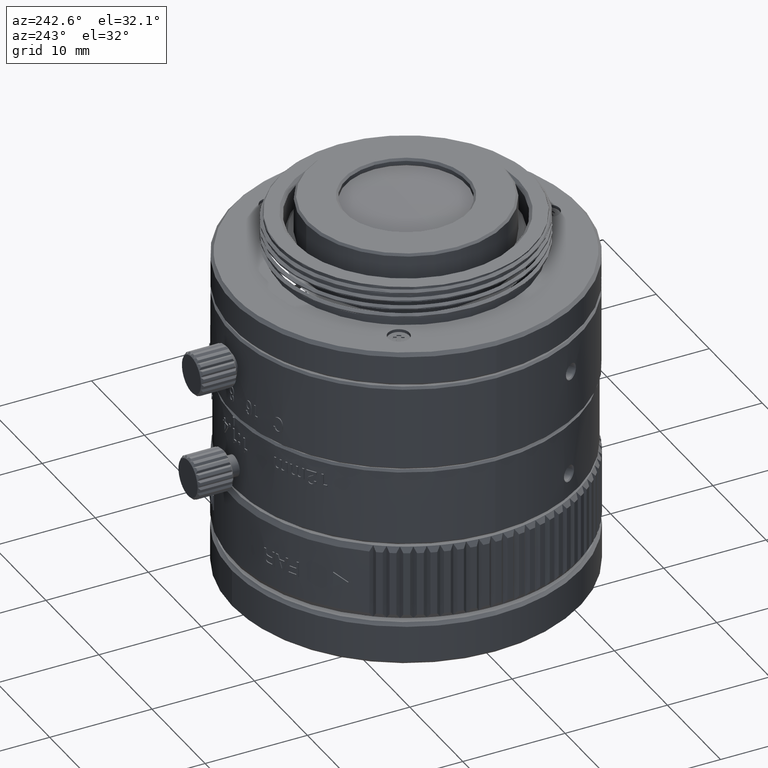
[diagram: clean part render]
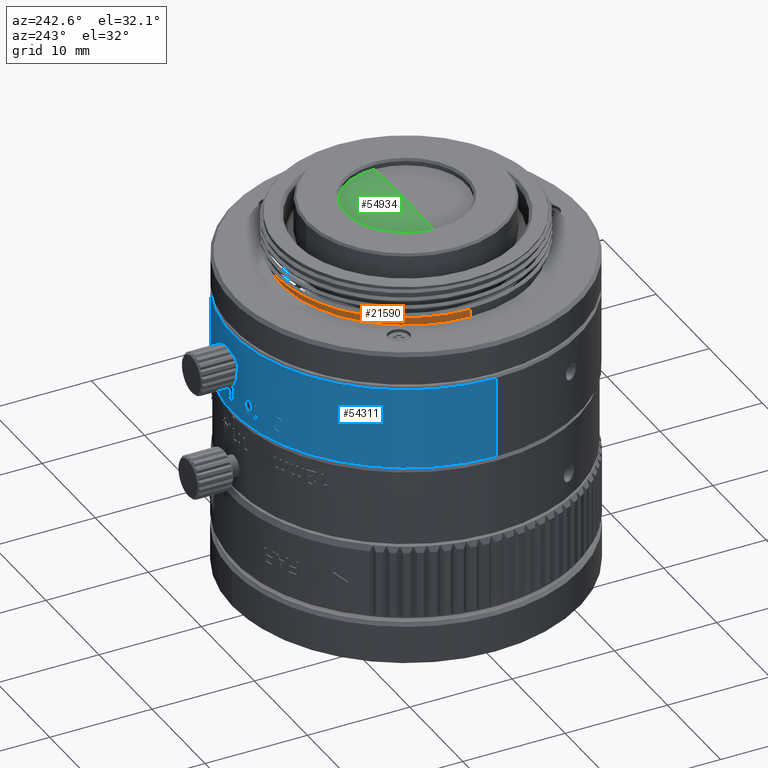
[diagram: same view with three faces highlighted in distinct colors, each labeled with its STEP entity id]
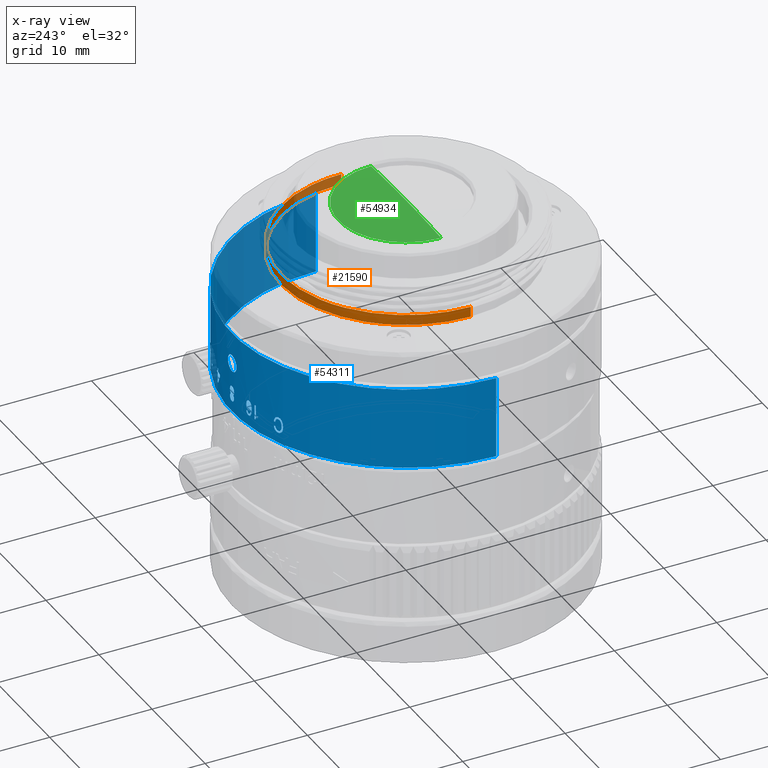
[diagram: x-ray of the same camera — body ghosted, the three highlighted faces saturated]
A machine part, auxiliary view with three faces highlighted in distinct colors.
The next image is the same camera in x-ray (body ghosted, the three faces saturated) — at least one of them is partly hidden behind the body in this view.
Their STEP definitions:

[orange] entity #21590 — the highlighted cylindrical surface (partial cylindrical patch) has radius 12.2 mm, axis along (0, -0, 1).
#606 = CARTESIAN_POINT ( 'NONE',  ( -12.05984699743781796, 2.129218594410544618, 18.33393810317681627 ) ) ;
#1807 = CARTESIAN_POINT ( 'NONE',  ( -11.09783534928862281, 5.177985320998259589, 19.33393792395263588 ) ) ;
#1915 = CARTESIAN_POINT ( 'NONE',  ( -10.56550992616946871, 6.100000000001683631, 18.33393824879479084 ) ) ;
#2378 = DIRECTION ( 'NONE',  ( 1.000000000000000000, 0.000000000000000000, 0.000000000000000000 ) ) ;
#2869 = VERTEX_POINT ( 'NONE', #39435 ) ;
#3505 = B_SPLINE_CURVE_WITH_KNOTS ( 'NONE', 3,
 ( #7073, #42801, #24932, #38422, #1807, #16159 ),
 .UNSPECIFIED., .F., .F.,
 ( 4, 2, 4 ),
 ( 0.000000000000000000, 0.5000000000000000000, 1.000000000000000000 ),
 .UNSPECIFIED. ) ;
#5778 = CARTESIAN_POINT ( 'NONE',  ( 10.48905871282342517, 6.371084055022999237, 18.33393814798234445 ) ) ;
#6070 = CARTESIAN_POINT ( 'NONE',  ( 11.98032357726369490, 2.661374025063922399, 18.33393814798234800 ) ) ;
#6165 = CARTESIAN_POINT ( 'NONE',  ( -7.043460337504324542, 10.04991199917833811, 19.33393792395316879 ) ) ;
#6456 = CARTESIAN_POINT ( 'NONE',  ( -5.898249279578523740, 10.76204999770845738, 19.33393792395316169 ) ) ;
#6659 = CARTESIAN_POINT ( 'NONE',  ( 0.5300460040633746539, 12.26091823440649620, 18.33393814798234800 ) ) ;
#7073 = CARTESIAN_POINT ( 'NONE',  ( -12.20002603357225190, -1.587611976440504958E-08, 19.33393792395140309 ) ) ;
#7606 = VERTEX_POINT ( 'NONE', #28901 ) ;
#8006 = CARTESIAN_POINT ( 'NONE',  ( 12.19999999999987139, 0.000000000000000000, 18.33393792395469291 ) ) ;
#8184 = CARTESIAN_POINT ( 'NONE',  ( 11.98032357726369135, 2.661374025063923732, 19.33393792395316879 ) ) ;
#8640 = VERTEX_POINT ( 'NONE', #26181 ) ;
#8852 = ORIENTED_EDGE ( 'NONE', *, *, #31861, .F. ) ;
#9185 = CARTESIAN_POINT ( 'NONE',  ( -2.125882357276625889, 12.08683949261531509, 19.33393792395316524 ) ) ;
#9677 = CARTESIAN_POINT ( 'NONE',  ( -10.56550992616946871, 6.100000000001683631, 18.33393824879479084 ) ) ;
#9866 = CARTESIAN_POINT ( 'NONE',  ( 4.443059532659293431, 11.43985518730331741, 18.33393814798234800 ) ) ;
#10095 = EDGE_CURVE ( 'NONE', #14994, #2869, #12749, .T. ) ;
#10456 = CARTESIAN_POINT ( 'NONE',  ( -10.56550992616946871, 6.100000000001683631, 18.33393824879479084 ) ) ;
#11396 = VECTOR ( 'NONE', #55618, 1000.000000000000000 ) ;
#11715 = CARTESIAN_POINT ( 'NONE',  ( 7.884487873167730143, 9.404568873430418918, 19.33393792395316879 ) ) ;
#12749 = B_SPLINE_CURVE_WITH_KNOTS ( 'NONE', 3,
 ( #9677, #23134, #18748, #606, #17892, #45379 ),
 .UNSPECIFIED., .F., .F.,
 ( 4, 2, 4 ),
 ( 0.000000000000000000, 0.5000000000000000000, 1.000000000000000000 ),
 .UNSPECIFIED. ) ;
#13570 = CARTESIAN_POINT ( 'NONE',  ( -9.900103148846191914, 7.252518346025121687, 19.33393792395316524 ) ) ;
#13609 = VERTEX_POINT ( 'NONE', #28953 ) ;
#13840 = ORIENTED_EDGE ( 'NONE', *, *, #28220, .T. ) ;
#14555 = CARTESIAN_POINT ( 'NONE',  ( 1.872125167843884608, 12.12873497414923207, 18.33393814798234800 ) ) ;
#14994 = VERTEX_POINT ( 'NONE', #1915 ) ;
#16159 = CARTESIAN_POINT ( 'NONE',  ( -10.56550992616885942, 6.100000000001297273, 19.33393792395144573 ) ) ;
#17892 = CARTESIAN_POINT ( 'NONE',  ( -12.20000000132030493, 1.064650831107616824, 18.33393810317681627 ) ) ;
#18748 = CARTESIAN_POINT ( 'NONE',  ( -11.50874316793094110, 4.185966091477150819, 18.33393810317681982 ) ) ;
#19833 = CARTESIAN_POINT ( 'NONE',  ( -2.125882357276609014, 12.08683949261531687, 18.33393814798234445 ) ) ;
#20207 = CARTESIAN_POINT ( 'NONE',  ( 12.19999999999987494, 1.330813554645588592, 19.33393792395316524 ) ) ;
#20241 = CYLINDRICAL_SURFACE ( 'NONE', #22049, 12.19999999999987139 ) ;
#21590 = ADVANCED_FACE ( 'NONE', ( #51527 ), #20241, .T. ) ;
#21825 = EDGE_CURVE ( 'NONE', #40415, #14994, #36967, .T. ) ;
#22049 = AXIS2_PLACEMENT_3D ( 'NONE', #46299, #24926, #2378 ) ;
#22649 = CARTESIAN_POINT ( 'NONE',  ( -3.439226470127112911, 11.78061059556771184, 19.33393792395316169 ) ) ;
#23134 = CARTESIAN_POINT ( 'NONE',  ( -11.09783534928861037, 5.177985320998280017, 18.33393810317681627 ) ) ;
#23914 = CARTESIAN_POINT ( 'NONE',  ( -3.439226470127093371, 11.78061059556771895, 18.33393814798234445 ) ) ;
#24217 = CARTESIAN_POINT ( 'NONE',  ( 8.868762790283057029, 8.482694812788919236, 18.33393814798234445 ) ) ;
#24512 = CARTESIAN_POINT ( 'NONE',  ( 5.671425812511539100, 10.88328966675072706, 18.33393814798234445 ) ) ;
#24889 = CARTESIAN_POINT ( 'NONE',  ( 5.671425812511529330, 10.88328966675073062, 19.33393792395316879 ) ) ;
#24926 = DIRECTION ( 'NONE',  ( 0.000000000000000000, -0.000000000000000000, 1.000000000000000000 ) ) ;
#24932 = CARTESIAN_POINT ( 'NONE',  ( -12.05984699743782151, 2.129218594410539289, 19.33393792395263944 ) ) ;
#25313 = ORIENTED_EDGE ( 'NONE', *, *, #55278, .T. ) ;
#25573 = ORIENTED_EDGE ( 'NONE', *, *, #46369, .T. ) ;
#26181 = CARTESIAN_POINT ( 'NONE',  ( 12.20002603357241533, 8.124336827791300204E-09, 19.33393792395138178 ) ) ;
#28025 = CARTESIAN_POINT ( 'NONE',  ( 11.12477158241677699, 5.181748928332710946, 18.33393814798234445 ) ) ;
#28220 = EDGE_CURVE ( 'NONE', #13609, #7606, #3505, .T. ) ;
#28419 = CARTESIAN_POINT ( 'NONE',  ( -9.044577550934851828, 8.294979303310562102, 19.33393792395316524 ) ) ;
#28899 = CARTESIAN_POINT ( 'NONE',  ( -7.043460337504311219, 10.04991199917834876, 18.33393814798234800 ) ) ;
#28901 = CARTESIAN_POINT ( 'NONE',  ( -10.56550992616885942, 6.100000000001297273, 19.33393792395144573 ) ) ;
#28953 = CARTESIAN_POINT ( 'NONE',  ( -12.20002603357225190, -1.587611976440504958E-08, 19.33393792395140309 ) ) ;
#29567 = CARTESIAN_POINT ( 'NONE',  ( 11.12477158241678765, 5.181748928332716275, 19.33393792395316524 ) ) ;
#31432 = CARTESIAN_POINT ( 'NONE',  ( -10.56550992616885942, 6.100000000001297273, 19.33393792395144573 ) ) ;
#31861 = EDGE_CURVE ( 'NONE', #40415, #8640, #53349, .T. ) ;
#33680 = CARTESIAN_POINT ( 'NONE',  ( 8.868762790283048147, 8.482694812788922789, 19.33393792395316169 ) ) ;
#34555 = CARTESIAN_POINT ( 'NONE',  ( 12.20002603357241533, 8.124336827791300204E-09, 19.33393792395138178 ) ) ;
#36806 = CARTESIAN_POINT ( 'NONE',  ( 12.19999999999987139, 1.330813554645587482, 18.33393814798234445 ) ) ;
#36904 = CARTESIAN_POINT ( 'NONE',  ( 0.5300460040633617753, 12.26091823440649975, 19.33393792395317234 ) ) ;
#36967 = B_SPLINE_CURVE_WITH_KNOTS ( 'NONE', 3,
 ( #37103, #36806, #6070, #28025, #5778, #24217, #50238, #24512, #9866, #14555, #6659, #19833, #23914, #51108, #28899, #45576, #41220, #10456 ),
 .UNSPECIFIED., .F., .F.,
 ( 4, 2, 2, 2, 2, 2, 2, 2, 4 ),
 ( 0.000000000000000000, 0.1250000000000000555, 0.2500000000000001665, 0.3750000000000002220, 0.5000000000000002220, 0.6250000000000001110, 0.7500000000000001110, 0.8750000000000000000, 1.000000000000000000 ),
 .UNSPECIFIED. ) ;
#37103 = CARTESIAN_POINT ( 'NONE',  ( 12.20003006776011745, 7.565567180006454712E-09, 18.33393825439541303 ) ) ;
#37811 = CARTESIAN_POINT ( 'NONE',  ( -12.19999999999987139, 1.494069094959755081E-15, 18.33393792395469291 ) ) ;
#37912 = ORIENTED_EDGE ( 'NONE', *, *, #10095, .T. ) ;
#38422 = CARTESIAN_POINT ( 'NONE',  ( -11.50874316793094287, 4.185966091477133055, 19.33393792395263588 ) ) ;
#39435 = CARTESIAN_POINT ( 'NONE',  ( -12.20003006776163268, -1.513109745744296165E-08, 18.33393824506093850 ) ) ;
#40415 = VERTEX_POINT ( 'NONE', #45377 ) ;
#41220 = CARTESIAN_POINT ( 'NONE',  ( -9.900103148846177703, 7.252518346025144780, 18.33393814798234445 ) ) ;
#42191 = LINE ( 'NONE', #37811, #11396 ) ;
#42225 = ORIENTED_EDGE ( 'NONE', *, *, #21825, .T. ) ;
#42762 = CARTESIAN_POINT ( 'NONE',  ( 4.443059532659281885, 11.43985518730332451, 19.33393792395316524 ) ) ;
#42801 = CARTESIAN_POINT ( 'NONE',  ( -12.20000000132030316, 1.064650831107612383, 19.33393792395263588 ) ) ;
#43450 = DIRECTION ( 'NONE',  ( 0.000000000000000000, -0.000000000000000000, 1.000000000000000000 ) ) ;
#45377 = CARTESIAN_POINT ( 'NONE',  ( 12.20003006776011745, 7.565567180006454712E-09, 18.33393825439541303 ) ) ;
#45379 = CARTESIAN_POINT ( 'NONE',  ( -12.20003006776163268, -1.513109745744296165E-08, 18.33393824506093850 ) ) ;
#45576 = CARTESIAN_POINT ( 'NONE',  ( -9.044577550934839394, 8.294979303310574537, 18.33393814798234445 ) ) ;
#46299 = CARTESIAN_POINT ( 'NONE',  ( 0.000000000000000000, 0.000000000000000000, 18.33393792395469291 ) ) ;
#46369 = EDGE_CURVE ( 'NONE', #7606, #8640, #54092, .T. ) ;
#47361 = VECTOR ( 'NONE', #43450, 1000.000000000000000 ) ;
#47996 = CARTESIAN_POINT ( 'NONE',  ( 10.48905871282342339, 6.371084055023006343, 19.33393792395317234 ) ) ;
#49151 = EDGE_LOOP ( 'NONE', ( #37912, #25313, #13840, #25573, #8852, #42225 ) ) ;
#50238 = CARTESIAN_POINT ( 'NONE',  ( 7.884487873167735472, 9.404568873430413589, 18.33393814798234445 ) ) ;
#51108 = CARTESIAN_POINT ( 'NONE',  ( -5.898249279578504201, 10.76204999770847337, 18.33393814798234800 ) ) ;
#51527 = FACE_OUTER_BOUND ( 'NONE', #49151, .T. ) ;
#53349 = LINE ( 'NONE', #8006, #47361 ) ;
#54092 = B_SPLINE_CURVE_WITH_KNOTS ( 'NONE', 3,
 ( #31432, #13570, #28419, #6165, #6456, #22649, #9185, #36904, #54732, #42762, #24889, #11715, #33680, #47996, #29567, #8184, #20207, #34555 ),
 .UNSPECIFIED., .F., .F.,
 ( 4, 2, 2, 2, 2, 2, 2, 2, 4 ),
 ( 0.000000000000000000, 0.1249999999999999445, 0.2499999999999999445, 0.3749999999999999445, 0.5000000000000000000, 0.6250000000000000000, 0.7500000000000001110, 0.8750000000000000000, 1.000000000000000000 ),
 .UNSPECIFIED. ) ;
#54732 = CARTESIAN_POINT ( 'NONE',  ( 1.872125167843867732, 12.12873497414923740, 19.33393792395316524 ) ) ;
#55278 = EDGE_CURVE ( 'NONE', #2869, #13609, #42191, .T. ) ;
#55618 = DIRECTION ( 'NONE',  ( 0.000000000000000000, -0.000000000000000000, 1.000000000000000000 ) ) ;

[blue] entity #54311 — the highlighted cylindrical surface (partial cylindrical patch) has radius 17 mm, axis along (0, 0, -1).
#19 = B_SPLINE_CURVE_WITH_KNOTS ( 'NONE', 3,
 ( #57005, #12529, #30385, #35078, #35654, #44700 ),
 .UNSPECIFIED., .F., .F.,
 ( 4, 2, 4 ),
 ( 3.870717469378995976E-12, 0.0001114263734425192449, 0.0002228527430143210225 ),
 .UNSPECIFIED. ) ;
#58 = CARTESIAN_POINT ( 'NONE',  ( -3.530164592827692793, 16.62942987439466336, 14.70393226270520337 ) ) ;
#137 = CARTESIAN_POINT ( 'NONE',  ( -5.965544266758881164, 15.91892840618375971, 9.037480056597816613 ) ) ;
#195 = CARTESIAN_POINT ( 'NONE',  ( 0.4040710678944025580, 16.99547568885909499, 10.96460402577348248 ) ) ;
#297 = CARTESIAN_POINT ( 'NONE',  ( 2.977334240663696008, 16.73731371333321150, 8.232822866532027106 ) ) ;
#348 = EDGE_CURVE ( 'NONE', #21013, #32699, #25119, .T. ) ;
#396 = EDGE_CURVE ( 'NONE', #56027, #35995, #11841, .T. ) ;
#401 = CARTESIAN_POINT ( 'NONE',  ( -0.2436875905205764803, 16.99825333256598370, 7.896218343437559462 ) ) ;
#429 = CARTESIAN_POINT ( 'NONE',  ( -6.637433958812297696, 15.65075494217393626, 8.152200584157260010 ) ) ;
#431 = LINE ( 'NONE', #18275, #37657 ) ;
#486 = EDGE_CURVE ( 'NONE', #38553, #47583, #19, .T. ) ;
#535 = CARTESIAN_POINT ( 'NONE',  ( 6.426430116716635332, 15.73851949691651697, 9.034425039395575396 ) ) ;
#551 = ORIENTED_EDGE ( 'NONE', *, *, #10035, .T. ) ;
#560 = ORIENTED_EDGE ( 'NONE', *, *, #43433, .T. ) ;
#638 = CARTESIAN_POINT ( 'NONE',  ( -0.2436875905205764803, 16.99825333256598370, 7.896218343437559462 ) ) ;
#650 = ORIENTED_EDGE ( 'NONE', *, *, #52084, .T. ) ;
#731 = VERTEX_POINT ( 'NONE', #18279 ) ;
#837 = ORIENTED_EDGE ( 'NONE', *, *, #27979, .T. ) ;
#1057 = EDGE_CURVE ( 'NONE', #32341, #36043, #4021, .T. ) ;
#1104 = EDGE_CURVE ( 'NONE', #5564, #15344, #49409, .T. ) ;
#1234 = DIRECTION ( 'NONE',  ( -0.000000000000000000, -0.000000000000000000, 1.000000000000000000 ) ) ;
#1249 = CARTESIAN_POINT ( 'NONE',  ( 0.000000000000000000, 0.000000000000000000, 9.269659262700001179 ) ) ;
#1271 = CARTESIAN_POINT ( 'NONE',  ( 5.698713070931674451, 16.01638752450303471, 7.820575725836969916 ) ) ;
#1318 = ORIENTED_EDGE ( 'NONE', *, *, #51434, .T. ) ;
#1328 = CIRCLE ( 'NONE', #49899, 16.99999999999599609 ) ;
#1357 = ORIENTED_EDGE ( 'NONE', *, *, #57057, .T. ) ;
#1372 = ORIENTED_EDGE ( 'NONE', *, *, #24954, .T. ) ;
#1502 = VERTEX_POINT ( 'NONE', #45568 ) ;
#1516 = CARTESIAN_POINT ( 'NONE',  ( -6.036449609128597515, 15.89217656950472879, 8.708559465213317807 ) ) ;
#1544 = VECTOR ( 'NONE', #4104, 1000.000000000000000 ) ;
#1620 = CARTESIAN_POINT ( 'NONE',  ( -3.132945503067504411, 16.70882651547202613, 8.399220301610709427 ) ) ;
#1631 = VERTEX_POINT ( 'NONE', #38282 ) ;
#1718 = CARTESIAN_POINT ( 'NONE',  ( -6.599888687488437711, 15.66657171536344606, 8.088396525699311113 ) ) ;
#1776 = ORIENTED_EDGE ( 'NONE', *, *, #42075, .T. ) ;
#1884 = LINE ( 'NONE', #25003, #52455 ) ;
#1896 = CARTESIAN_POINT ( 'NONE',  ( -5.876925641112475063, 15.95185710219028330, 8.242164355321328628 ) ) ;
#2049 = CARTESIAN_POINT ( 'NONE',  ( -6.281056366716882167, 15.79722974516614009, 7.737072747750185719 ) ) ;
#2143 = CARTESIAN_POINT ( 'NONE',  ( 0.4094704627990465862, 16.99506792984242765, 8.777996766011396446 ) ) ;
#2145 = VERTEX_POINT ( 'NONE', #4185 ) ;
#2172 = DIRECTION ( 'NONE',  ( -1.000000000000000000, -1.971756091734278268E-13, 0.000000000000000000 ) ) ;
#2366 = CARTESIAN_POINT ( 'NONE',  ( 6.755159353039301706, 15.60044611504845768, 8.452803960778604520 ) ) ;
#2473 = B_SPLINE_CURVE_WITH_KNOTS ( 'NONE', 3,
 ( #47131, #2049, #19920, #41594, #24879, #37191 ),
 .UNSPECIFIED., .F., .F.,
 ( 4, 2, 4 ),
 ( 3.089963257214909641E-16, 0.0001902412681376839960, 0.0003804825362750589943 ),
 .UNSPECIFIED. ) ;
#2498 = CIRCLE ( 'NONE', #35238, 16.99999999999599609 ) ;
#2566 = EDGE_CURVE ( 'NONE', #13124, #49367, #57515, .T. ) ;
#2743 = CARTESIAN_POINT ( 'NONE',  ( -2.727002337756255113, 16.77985274815413419, 7.787989210887235281 ) ) ;
#2761 = CARTESIAN_POINT ( 'NONE',  ( 0.2204354891874438782, 16.99864100717341131, 9.250199200073717876 ) ) ;
#2813 = ORIENTED_EDGE ( 'NONE', *, *, #52692, .T. ) ;
#2937 = CARTESIAN_POINT ( 'NONE',  ( -6.351313170788912998, 15.76898287799271436, 9.109781466974588682 ) ) ;
#2957 = EDGE_LOOP ( 'NONE', ( #33888, #43344 ) ) ;
#2993 = CARTESIAN_POINT ( 'NONE',  ( -0.3066191617121327706, 16.99723461888830300, 8.363345585809753402 ) ) ;
#2996 = DIRECTION ( 'NONE',  ( 0.000000000000000000, 0.000000000000000000, -1.000000000000000000 ) ) ;
#3096 = CARTESIAN_POINT ( 'NONE',  ( -2.549832260042631749, 16.80768739135488232, 8.188192856117957774 ) ) ;
#3110 = ORIENTED_EDGE ( 'NONE', *, *, #57895, .T. ) ;
#3146 = CARTESIAN_POINT ( 'NONE',  ( -3.103795287654083079, 16.71426557807397373, 8.959535987711170435 ) ) ;
#3208 = FACE_BOUND ( 'NONE', #4106, .T. ) ;
#3214 = B_SPLINE_CURVE_WITH_KNOTS ( 'NONE', 3,
 ( #25979, #53737, #35333, #57260, #53165, #9255 ),
 .UNSPECIFIED., .F., .F.,
 ( 4, 2, 4 ),
 ( 4.290366501205640061E-16, 0.0001508300971532424188, 0.0003016601943060557645 ),
 .UNSPECIFIED. ) ;
#3218 = CARTESIAN_POINT ( 'NONE',  ( -0.3791242361070129574, 16.99577196874153273, 8.910861643780426888 ) ) ;
#3223 = ORIENTED_EDGE ( 'NONE', *, *, #9037, .T. ) ;
#3329 = B_SPLINE_CURVE_WITH_KNOTS ( 'NONE', 3,
 ( #56189, #33973, #21359, #21064 ),
 .UNSPECIFIED., .F., .F.,
 ( 4, 4 ),
 ( 4.854754672079450360E-16, 0.0002519371073143824072 ),
 .UNSPECIFIED. ) ;
#3360 = CARTESIAN_POINT ( 'NONE',  ( 0.7837614110213922958, 16.98197216711741575, 11.87442922263426759 ) ) ;
#3373 = B_SPLINE_CURVE_WITH_KNOTS ( 'NONE', 3,
 ( #3630, #23925, #11556, #25026, #38802, #42893 ),
 .UNSPECIFIED., .F., .F.,
 ( 4, 2, 4 ),
 ( 1.347413724508282990E-11, 0.0001435384382104465471, 0.0002870768629467558152 ),
 .UNSPECIFIED. ) ;
#3398 = ORIENTED_EDGE ( 'NONE', *, *, #1104, .T. ) ;
#3428 = CARTESIAN_POINT ( 'NONE',  ( -6.660960198093857088, 15.64071051190166628, 8.815965718922671002 ) ) ;
#3469 = CARTESIAN_POINT ( 'NONE',  ( -6.819332295136439903, 15.57271548912289738, 8.934097409436006387 ) ) ;
#3482 = VERTEX_POINT ( 'NONE', #51036 ) ;
#3503 = AXIS2_PLACEMENT_3D ( 'NONE', #10252, #24312, #37503 ) ;
#3515 = DIRECTION ( 'NONE',  ( -0.000000000000000000, -0.000000000000000000, 1.000000000000000000 ) ) ;
#3571 = CARTESIAN_POINT ( 'NONE',  ( 0.2781734884225313675, 16.99783623571015667, 8.526787405077188353 ) ) ;
#3630 = CARTESIAN_POINT ( 'NONE',  ( 0.01517314512756977318, 16.99999322869073026, 7.787989210887246827 ) ) ;
#3649 = CARTESIAN_POINT ( 'NONE',  ( -0.8046850984817921493, 16.98094467050832179, 11.87627383945295279 ) ) ;
#3696 = EDGE_CURVE ( 'NONE', #1631, #46450, #34418, .T. ) ;
#3733 = CARTESIAN_POINT ( 'NONE',  ( -3.685442433584539490, 16.59570770014338237, 8.240127664609515179 ) ) ;
#3820 = VERTEX_POINT ( 'NONE', #1516 ) ;
#3827 = ORIENTED_EDGE ( 'NONE', *, *, #45832, .T. ) ;
#3830 = CARTESIAN_POINT ( 'NONE',  ( 0.4094704627988958179, 16.99506792984243475, 8.911011914589083815 ) ) ;
#3843 = CARTESIAN_POINT ( 'NONE',  ( -2.370685096221210486, 16.83388998937615000, 8.914049858333639165 ) ) ;
#3927 = CARTESIAN_POINT ( 'NONE',  ( -0.7184561990515566654, 16.98547892420447880, 12.08205033276469287 ) ) ;
#3960 = VERTEX_POINT ( 'NONE', #35168 ) ;
#4021 = B_SPLINE_CURVE_WITH_KNOTS ( 'NONE', 3,
 ( #27220, #22231, #35435, #22815, #297, #45065, #17859, #31898, #8786, #27792 ),
 .UNSPECIFIED., .F., .F.,
 ( 4, 3, 3, 4 ),
 ( 4.708426279249741560E-16, 0.0004744832749292217399, 0.0007588791802660085645, 0.001043279809291837359 ),
 .UNSPECIFIED. ) ;
#4090 = CARTESIAN_POINT ( 'NONE',  ( -2.785310520794233025, 16.77037104867497419, 8.326685768170072777 ) ) ;
#4091 = ORIENTED_EDGE ( 'NONE', *, *, #486, .T. ) ;
#4104 = DIRECTION ( 'NONE',  ( -0.000000000000000000, -0.000000000000000000, 1.000000000000000000 ) ) ;
#4106 = EDGE_LOOP ( 'NONE', ( #35139, #28473, #29756, #34182, #12308, #26072, #50826, #35601 ) ) ;
#4185 = CARTESIAN_POINT ( 'NONE',  ( -0.3408350318669198242, 16.99658293542898946, 8.180046272083407288 ) ) ;
#4207 = CARTESIAN_POINT ( 'NONE',  ( -0.2785833517458904396, 16.99775306563818589, 7.934658189722802568 ) ) ;
#4208 = CARTESIAN_POINT ( 'NONE',  ( -2.747112470741986723, 16.77657214907019778, 9.301227490967219680 ) ) ;
#4350 = CARTESIAN_POINT ( 'NONE',  ( 5.815311580427489524, 15.97442178053434070, 7.820575725836931724 ) ) ;
#4385 = CARTESIAN_POINT ( 'NONE',  ( -2.692541393691064933, 16.78550799633244495, 9.301227490967288958 ) ) ;
#4435 = DIRECTION ( 'NONE',  ( -0.000000000000000000, -0.000000000000000000, 1.000000000000000000 ) ) ;
#4438 = CARTESIAN_POINT ( 'NONE',  ( -3.137927923234791194, 16.70788461620582765, 8.608763129100074352 ) ) ;
#4502 = CARTESIAN_POINT ( 'NONE',  ( -0.1043702404195047118, 17.00000203143060062, 12.46433522217591161 ) ) ;
#4576 = CARTESIAN_POINT ( 'NONE',  ( 0.2163951158520880380, 16.99862268402058874, 8.493691813750665176 ) ) ;
#4580 = LINE ( 'NONE', #12794, #25220 ) ;
#4639 = DIRECTION ( 'NONE',  ( -1.000000000000000000, 0.000000000000000000, 0.000000000000000000 ) ) ;
#4671 = VERTEX_POINT ( 'NONE', #43813 ) ;
#4705 = CARTESIAN_POINT ( 'NONE',  ( -6.692881062061999842, 15.62707084161826110, 8.520168461345292599 ) ) ;
#4723 = CARTESIAN_POINT ( 'NONE',  ( 7.369535569789695373, 15.31959351567359207, 14.70393226270520337 ) ) ;
#4751 = CARTESIAN_POINT ( 'NONE',  ( -6.602375542260225494, 15.66552384054960889, 8.951169096599395303 ) ) ;
#4814 = DIRECTION ( 'NONE',  ( -0.000000000000000000, -0.000000000000000000, 1.000000000000000000 ) ) ;
#4899 = ORIENTED_EDGE ( 'NONE', *, *, #18315, .T. ) ;
#5035 = CARTESIAN_POINT ( 'NONE',  ( -6.849108940915217936, 15.55923220198667600, 8.537479962122521471 ) ) ;
#5070 = DIRECTION ( 'NONE',  ( -0.000000000000000000, -0.000000000000000000, 1.000000000000000000 ) ) ;
#5108 = DIRECTION ( 'NONE',  ( -0.000000000000000000, -0.000000000000000000, 1.000000000000000000 ) ) ;
#5140 = VERTEX_POINT ( 'NONE', #18380 ) ;
#5141 = CARTESIAN_POINT ( 'NONE',  ( -2.471601513132187122, 16.81936936868164878, 9.154587979717701884 ) ) ;
#5301 = CARTESIAN_POINT ( 'NONE',  ( 0.2732199672382013556, 16.99780429494840561, 7.896219229002068296 ) ) ;
#5384 = CIRCLE ( 'NONE', #9105, 16.99999999999599609 ) ;
#5390 = DIRECTION ( 'NONE',  ( 0.000000000000000000, 0.000000000000000000, -1.000000000000000000 ) ) ;
#5432 = CARTESIAN_POINT ( 'NONE',  ( 5.586245409761001923, 16.05598601365272415, 8.048078333276848184 ) ) ;
#5498 = CARTESIAN_POINT ( 'NONE',  ( -3.767508366917453611, 16.57729482315481206, 8.048068942003821391 ) ) ;
#5535 = CARTESIAN_POINT ( 'NONE',  ( -6.150709155117861648, 15.84830517402455108, 9.015842738107609833 ) ) ;
#5539 = CARTESIAN_POINT ( 'NONE',  ( -2.542865633965025740, 16.80881163093572894, 9.239021828659280899 ) ) ;
#5564 = VERTEX_POINT ( 'NONE', #5141 ) ;
#5588 = EDGE_CURVE ( 'NONE', #10935, #9774, #39152, .T. ) ;
#5724 = CARTESIAN_POINT ( 'NONE',  ( 0.3361507295982097410, 16.99667622468741612, 8.365382257463819471 ) ) ;
#5732 = CARTESIAN_POINT ( 'NONE',  ( -0.7023375393343136430, 16.98553451072410070, 11.26022549798109118 ) ) ;
#5781 = CARTESIAN_POINT ( 'NONE',  ( 0.1227082655180352366, 16.99962736583434975, 9.292067163552976794 ) ) ;
#5818 = VERTEX_POINT ( 'NONE', #11273 ) ;
#5878 = ORIENTED_EDGE ( 'NONE', *, *, #46296, .T. ) ;
#5914 = DIRECTION ( 'NONE',  ( 0.000000000000000000, 0.000000000000000000, -1.000000000000000000 ) ) ;
#6092 = CARTESIAN_POINT ( 'NONE',  ( -6.045010142337558179, 15.88892495528326165, 8.763806754590389048 ) ) ;
#6110 = CARTESIAN_POINT ( 'NONE',  ( 7.369535569790469864, 15.31959351567322081, 8.912225451870941839 ) ) ;
#6120 = ORIENTED_EDGE ( 'NONE', *, *, #16469, .T. ) ;
#6188 = CARTESIAN_POINT ( 'NONE',  ( 7.040420158649754789, 15.47367690959273112, 7.903017210870747711 ) ) ;
#6209 = CARTESIAN_POINT ( 'NONE',  ( 3.347251150137603215, 16.66721061658987679, 14.70393226270520337 ) ) ;
#6536 = CARTESIAN_POINT ( 'NONE',  ( -6.199967801515330557, 15.82920493094794701, 7.955680592786421812 ) ) ;
#6610 = CARTESIAN_POINT ( 'NONE',  ( -3.079070759032434434, 16.71890322109267402, 8.089590306077683479 ) ) ;
#6617 = EDGE_CURVE ( 'NONE', #46824, #27300, #2498, .T. ) ;
#6633 = B_SPLINE_CURVE_WITH_KNOTS ( 'NONE', 3,
 ( #12429, #12147, #42902, #30292 ),
 .UNSPECIFIED., .F., .F.,
 ( 4, 4 ),
 ( 2.335710724227871043E-16, 0.0001787150292162209943 ),
 .UNSPECIFIED. ) ;
#6702 = CARTESIAN_POINT ( 'NONE',  ( -6.342244045434654254, 15.77263264227199713, 7.928518724246401028 ) ) ;
#6705 = CARTESIAN_POINT ( 'NONE',  ( 3.207359040682196571, 16.69469520488523528, 9.269659262700001179 ) ) ;
#6776 = EDGE_CURVE ( 'NONE', #12530, #731, #1884, .T. ) ;
#6826 = CARTESIAN_POINT ( 'NONE',  ( 0.3972373367215852324, 16.99539143660016904, 8.703772113395768173 ) ) ;
#6862 = EDGE_CURVE ( 'NONE', #20170, #12530, #38510, .T. ) ;
#6868 = CARTESIAN_POINT ( 'NONE',  ( -2.392492987126035864, 16.83080441649824266, 8.188192856116803142 ) ) ;
#6909 = VERTEX_POINT ( 'NONE', #52490 ) ;
#7033 = DIRECTION ( 'NONE',  ( 0.000000000000000000, 0.000000000000000000, -1.000000000000000000 ) ) ;
#7222 = VERTEX_POINT ( 'NONE', #20465 ) ;
#7428 = AXIS2_PLACEMENT_3D ( 'NONE', #41792, #28017, #24211 ) ;
#7592 = CARTESIAN_POINT ( 'NONE',  ( -6.599888687488437711, 15.66657171536344606, 8.088396525699311113 ) ) ;
#7612 = CARTESIAN_POINT ( 'NONE',  ( 3.207359040682468798, 16.69469520488518910, 7.820575725836999226 ) ) ;
#7683 = AXIS2_PLACEMENT_3D ( 'NONE', #30089, #51431, #47649 ) ;
#7695 = CARTESIAN_POINT ( 'NONE',  ( -5.876925641112475063, 15.95185710219028330, 8.242164355321328628 ) ) ;
#7717 = VERTEX_POINT ( 'NONE', #18304 ) ;
#7896 = FACE_BOUND ( 'NONE', #15793, .T. ) ;
#8054 = B_SPLINE_CURVE_WITH_KNOTS ( 'NONE', 3,
 ( #16201, #6826, #2143, #24687 ),
 .UNSPECIFIED., .F., .F.,
 ( 4, 4 ),
 ( 3.540552792286185172E-16, 0.0002205145962310316654 ),
 .UNSPECIFIED. ) ;
#8279 = CARTESIAN_POINT ( 'NONE',  ( -0.3791242361067430067, 16.99577196874153628, 8.852143969933733203 ) ) ;
#8313 = EDGE_CURVE ( 'NONE', #33263, #47037, #53453, .T. ) ;
#8324 = CARTESIAN_POINT ( 'NONE',  ( -0.2336365188666705284, 16.99843154873307327, 9.217430998463482794 ) ) ;
#8539 = CARTESIAN_POINT ( 'NONE',  ( -2.999158865893959636, 16.73335233195017935, 8.436287855256269452 ) ) ;
#8624 = EDGE_LOOP ( 'NONE', ( #52938, #38128, #31995, #11265, #12744, #44426, #48240, #14606, #18371, #25723, #10850, #54671, #48165, #1372, #650, #9596, #51144, #38272, #19224 ) ) ;
#8677 = EDGE_CURVE ( 'NONE', #46222, #47014, #17995, .T. ) ;
#8707 = ORIENTED_EDGE ( 'NONE', *, *, #15975, .T. ) ;
#8747 = FACE_OUTER_BOUND ( 'NONE', #29758, .T. ) ;
#8773 = CARTESIAN_POINT ( 'NONE',  ( -3.004912181496443235, 16.73231910947666634, 8.493691813755317455 ) ) ;
#8786 = CARTESIAN_POINT ( 'NONE',  ( 3.161412316646621701, 16.70352241849510477, 7.903026470258405212 ) ) ;
#8899 = B_SPLINE_CURVE_WITH_KNOTS ( 'NONE', 3,
 ( #46632, #6536, #37281, #38168 ),
 .UNSPECIFIED., .F., .F.,
 ( 4, 4 ),
 ( 2.068980480322238940E-17, 0.0002291153835345516971 ),
 .UNSPECIFIED. ) ;
#8914 = CARTESIAN_POINT ( 'NONE',  ( -6.692881064509887068, 15.62707084056986417, 8.445030989102699337 ) ) ;
#8992 = ORIENTED_EDGE ( 'NONE', *, *, #31455, .T. ) ;
#9037 = EDGE_CURVE ( 'NONE', #40662, #5564, #30391, .T. ) ;
#9099 = CIRCLE ( 'NONE', #38136, 16.99999999999599609 ) ;
#9105 = AXIS2_PLACEMENT_3D ( 'NONE', #51509, #29293, #46867 ) ;
#9115 = CARTESIAN_POINT ( 'NONE',  ( -0.1860488712787457255, 16.99898190531891373, 8.493691813750412933 ) ) ;
#9118 = ORIENTED_EDGE ( 'NONE', *, *, #45780, .T. ) ;
#9178 = CARTESIAN_POINT ( 'NONE',  ( -0.3408350318669198242, 16.99658293542898946, 8.180046272083407288 ) ) ;
#9255 = CARTESIAN_POINT ( 'NONE',  ( -2.469388304745736562, 16.81969445026421894, 8.456268579361918114 ) ) ;
#9316 = CARTESIAN_POINT ( 'NONE',  ( -3.739523937258002917, 16.58360517868591444, 8.021186763160503830 ) ) ;
#9335 = CARTESIAN_POINT ( 'NONE',  ( -6.351313170788912998, 15.76898287799271436, 9.109781466974588682 ) ) ;
#9507 = CARTESIAN_POINT ( 'NONE',  ( -3.036983026596856483, 16.72652785535678532, 9.122001328819809629 ) ) ;
#9525 = B_SPLINE_CURVE_WITH_KNOTS ( 'NONE', 3,
 ( #49622, #49901, #9533, #40307, #5432, #10105 ),
 .UNSPECIFIED., .F., .F.,
 ( 4, 2, 4 ),
 ( 1.235556719653409872E-16, 0.0001166913376778156390, 0.0002333826753555077061 ),
 .UNSPECIFIED. ) ;
#9533 = CARTESIAN_POINT ( 'NONE',  ( 5.478516389791558971, 16.09308229766511289, 8.079348766337471233 ) ) ;
#9535 = B_SPLINE_CURVE_WITH_KNOTS ( 'NONE', 3,
 ( #13378, #38899, #52894, #21016 ),
 .UNSPECIFIED., .F., .F.,
 ( 4, 4 ),
 ( 1.711765364284049961E-16, 0.0001694228351722158548 ),
 .UNSPECIFIED. ) ;
#9596 = ORIENTED_EDGE ( 'NONE', *, *, #13134, .T. ) ;
#9631 = CARTESIAN_POINT ( 'NONE',  ( -2.728611342561990671, 16.77959117920058318, 8.326685768170463575 ) ) ;
#9774 = VERTEX_POINT ( 'NONE', #26815 ) ;
#9798 = ORIENTED_EDGE ( 'NONE', *, *, #24891, .T. ) ;
#9823 = CARTESIAN_POINT ( 'NONE',  ( -0.4193768810263478475, 16.99547768376685752, 10.95042776809544094 ) ) ;
#9903 = CARTESIAN_POINT ( 'NONE',  ( -6.453868306446850944, 15.72735806150147830, 9.096552468354936138 ) ) ;
#9912 = DIRECTION ( 'NONE',  ( -0.000000000000000000, -0.000000000000000000, 1.000000000000000000 ) ) ;
#9957 = LINE ( 'NONE', #13786, #10595 ) ;
#10009 = CARTESIAN_POINT ( 'NONE',  ( -6.414945290472916284, 15.74340733457945518, 7.737072747750441515 ) ) ;
#10035 = EDGE_CURVE ( 'NONE', #47037, #7717, #9957, .T. ) ;
#10105 = CARTESIAN_POINT ( 'NONE',  ( 5.613351449361880796, 16.04650384058192714, 8.021186763160363498 ) ) ;
#10111 = CARTESIAN_POINT ( 'NONE',  ( 0.2095024636332421253, 16.99898750032605221, 10.88483779768158044 ) ) ;
#10203 = CARTESIAN_POINT ( 'NONE',  ( -6.394705865206340434, 15.75153751683339465, 7.928518724245912530 ) ) ;
#10219 = CARTESIAN_POINT ( 'NONE',  ( 7.369535569789146479, 15.31959351567385674, 8.749292653604465286 ) ) ;
#10252 = CARTESIAN_POINT ( 'NONE',  ( 0.000000000000000000, 0.000000000000000000, 8.912225451871883308 ) ) ;
#10407 = CARTESIAN_POINT ( 'NONE',  ( 0.000000000000000000, 0.000000000000000000, 9.269659262700001179 ) ) ;
#10439 = VERTEX_POINT ( 'NONE', #4350 ) ;
#10453 = EDGE_CURVE ( 'NONE', #36043, #24849, #19030, .T. ) ;
#10481 = CARTESIAN_POINT ( 'NONE',  ( -6.150709155117861648, 15.84830517402455108, 9.015842738107609833 ) ) ;
#10507 = CARTESIAN_POINT ( 'NONE',  ( -6.571838535410812199, 15.67838846026099731, 8.040728377888950007 ) ) ;
#10533 = CIRCLE ( 'NONE', #43267, 16.99999999999599609 ) ;
#10537 = DIRECTION ( 'NONE',  ( -0.000000000000000000, -0.000000000000000000, 1.000000000000000000 ) ) ;
#10574 = ORIENTED_EDGE ( 'NONE', *, *, #30974, .T. ) ;
#10582 = CARTESIAN_POINT ( 'NONE',  ( 6.826669541353565407, 15.56909062768341911, 8.315261026516862941 ) ) ;
#10594 = CARTESIAN_POINT ( 'NONE',  ( -6.849108957094677486, 15.55923219486454379, 8.733122663957624709 ) ) ;
#10595 = VECTOR ( 'NONE', #40733, 1000.000000000000000 ) ;
#10602 = LINE ( 'NONE', #6209, #17742 ) ;
#10725 = VERTEX_POINT ( 'NONE', #35053 ) ;
#10758 = ORIENTED_EDGE ( 'NONE', *, *, #12035, .T. ) ;
#10830 = CARTESIAN_POINT ( 'NONE',  ( -2.549832260042631749, 16.80768739135488232, 8.188192856117957774 ) ) ;
#10842 = ORIENTED_EDGE ( 'NONE', *, *, #51777, .T. ) ;
#10850 = ORIENTED_EDGE ( 'NONE', *, *, #47264, .T. ) ;
#10862 = EDGE_CURVE ( 'NONE', #34382, #55198, #24577, .T. ) ;
#10935 = VERTEX_POINT ( 'NONE', #29424 ) ;
#11053 = EDGE_CURVE ( 'NONE', #19491, #39673, #23202, .T. ) ;
#11079 = CARTESIAN_POINT ( 'NONE',  ( -6.056741225084429914, 15.88461761694297536, 9.182562881143306655 ) ) ;
#11265 = ORIENTED_EDGE ( 'NONE', *, *, #348, .T. ) ;
#11273 = CARTESIAN_POINT ( 'NONE',  ( 7.082992459449529932, 15.45416506380222010, 7.820575725836999226 ) ) ;
#11424 = CARTESIAN_POINT ( 'NONE',  ( 0.000000000000000000, 0.000000000000000000, 8.749292653605213133 ) ) ;
#11532 = CARTESIAN_POINT ( 'NONE',  ( -3.000675495278525506, 16.73310750920436618, 7.938270893719451493 ) ) ;
#11556 = CARTESIAN_POINT ( 'NONE',  ( 0.1116825322660581765, 16.99969140996958217, 7.795561175007372334 ) ) ;
#11692 = CARTESIAN_POINT ( 'NONE',  ( 3.347251150137599662, 16.66721061658987679, 8.749292653604607395 ) ) ;
#11755 = B_SPLINE_CURVE_WITH_KNOTS ( 'NONE', 3,
 ( #13194, #3830, #39565, #17305, #17023, #34304 ),
 .UNSPECIFIED., .F., .F.,
 ( 4, 2, 4 ),
 ( 1.074487566984196396E-16, 0.0001739349239264902655, 0.0003478698478528730867 ),
 .UNSPECIFIED. ) ;
#11817 = CARTESIAN_POINT ( 'NONE',  ( 6.611525012097439813, 15.66166456716124067, 8.912225451871883308 ) ) ;
#11822 = DIRECTION ( 'NONE',  ( -0.000000000000000000, -0.000000000000000000, 1.000000000000000000 ) ) ;
#11841 = B_SPLINE_CURVE_WITH_KNOTS ( 'NONE', 3,
 ( #23964, #51153, #11079, #28939 ),
 .UNSPECIFIED., .F., .F.,
 ( 4, 4 ),
 ( 0.000000000000000000, 0.0002606150655346832685 ),
 .UNSPECIFIED. ) ;
#11890 = CARTESIAN_POINT ( 'NONE',  ( -2.370685096219852461, 16.83388998937634184, 8.782897558614573441 ) ) ;
#11958 = VECTOR ( 'NONE', #28353, 1000.000000000000000 ) ;
#12015 = CARTESIAN_POINT ( 'NONE',  ( -0.3079790402351775258, 16.99725440776750318, 9.132763130346395641 ) ) ;
#12035 = EDGE_CURVE ( 'NONE', #57141, #50752, #5384, .T. ) ;
#12069 = EDGE_CURVE ( 'NONE', #49367, #19075, #24907, .T. ) ;
#12110 = CARTESIAN_POINT ( 'NONE',  ( -3.030849202702769141, 16.72764039278522930, 7.996512520668101587 ) ) ;
#12147 = CARTESIAN_POINT ( 'NONE',  ( -0.2375041407010915484, 16.99841874248653184, 8.461985228398164693 ) ) ;
#12290 = FACE_BOUND ( 'NONE', #55135, .T. ) ;
#12308 = ORIENTED_EDGE ( 'NONE', *, *, #42985, .T. ) ;
#12429 = CARTESIAN_POINT ( 'NONE',  ( -0.1860488712787457255, 16.99898190531891373, 8.493691813750412933 ) ) ;
#12529 = CARTESIAN_POINT ( 'NONE',  ( 5.639377140114658182, 16.03739959268596849, 7.995366993314797277 ) ) ;
#12530 = VERTEX_POINT ( 'NONE', #55780 ) ;
#12533 = CARTESIAN_POINT ( 'NONE',  ( -2.796452210070064393, 16.76841838208536117, 7.980862332551776461 ) ) ;
#12572 = EDGE_CURVE ( 'NONE', #56281, #40662, #50242, .T. ) ;
#12650 = CARTESIAN_POINT ( 'NONE',  ( -5.881725207868433003, 15.95008886312234608, 8.174606847045851055 ) ) ;
#12727 = DIRECTION ( 'NONE',  ( 0.000000000000000000, 0.000000000000000000, -1.000000000000000000 ) ) ;
#12744 = ORIENTED_EDGE ( 'NONE', *, *, #48983, .T. ) ;
#12746 = ORIENTED_EDGE ( 'NONE', *, *, #16716, .T. ) ;
#12794 = CARTESIAN_POINT ( 'NONE',  ( 7.212506109934248677, 15.39414679720916013, 14.70393226270520337 ) ) ;
#12921 = CARTESIAN_POINT ( 'NONE',  ( -3.530164592826744663, 16.62942987439486231, 7.820575725837080938 ) ) ;
#12926 = CARTESIAN_POINT ( 'NONE',  ( -0.3324239627313807510, 16.99676911690318093, 8.305745562764181855 ) ) ;
#12952 = B_SPLINE_CURVE_WITH_KNOTS ( 'NONE', 3,
 ( #41753, #23872, #27983, #41467 ),
 .UNSPECIFIED., .F., .F.,
 ( 4, 4 ),
 ( 2.072564188029290595E-16, 0.0002104321519973265976 ),
 .UNSPECIFIED. ) ;
#13005 = CARTESIAN_POINT ( 'NONE',  ( 5.815311580426452132, 15.97442178053471551, 9.269659262700001179 ) ) ;
#13009 = EDGE_CURVE ( 'NONE', #3482, #39612, #30531, .T. ) ;
#13018 = VERTEX_POINT ( 'NONE', #8279 ) ;
#13084 = CARTESIAN_POINT ( 'NONE',  ( -3.712639093821580527, 16.58966758276366704, 7.995360859435815648 ) ) ;
#13124 = VERTEX_POINT ( 'NONE', #50070 ) ;
#13133 = VERTEX_POINT ( 'NONE', #23456 ) ;
#13134 = EDGE_CURVE ( 'NONE', #4671, #1631, #22324, .T. ) ;
#13194 = CARTESIAN_POINT ( 'NONE',  ( 0.4094704627989886325, 16.99506792984244186, 8.852143969936843604 ) ) ;
#13257 = CARTESIAN_POINT ( 'NONE',  ( 6.611525012097768439, 15.66166456716110922, 8.727907714052836496 ) ) ;
#13308 = VERTEX_POINT ( 'NONE', #47163 ) ;
#13351 = AXIS2_PLACEMENT_3D ( 'NONE', #1249, #5070, #23198 ) ;
#13364 = CARTESIAN_POINT ( 'NONE',  ( -3.137927924140006652, 16.70788461603581609, 8.697116030112274743 ) ) ;
#13378 = CARTESIAN_POINT ( 'NONE',  ( -2.565147502029970550, 16.80535683324497498, 7.830759053735827813 ) ) ;
#13421 = ORIENTED_EDGE ( 'NONE', *, *, #5588, .T. ) ;
#13546 = CARTESIAN_POINT ( 'NONE',  ( -6.340732297674707141, 15.77324043844792456, 7.737072747750342039 ) ) ;
#13596 = CARTESIAN_POINT ( 'NONE',  ( -16.99999999999599609, 0.000000000000000000, 14.70393226270520337 ) ) ;
#13631 = AXIS2_PLACEMENT_3D ( 'NONE', #44628, #5108, #23237 ) ;
#13661 = VECTOR ( 'NONE', #18880, 1000.000000000000000 ) ;
#13786 = CARTESIAN_POINT ( 'NONE',  ( 16.99999999999599609, 2.081899558550010003E-15, 14.70393226270520337 ) ) ;
#13818 = B_SPLINE_CURVE_WITH_KNOTS ( 'NONE', 3,
 ( #39173, #52880, #3146, #43833, #13364, #16914 ),
 .UNSPECIFIED., .F., .F.,
 ( 4, 2, 4 ),
 ( 5.456827515769675387E-11, 0.0002629526086008241955, 0.0005259051626333732538 ),
 .UNSPECIFIED. ) ;
#13999 = CARTESIAN_POINT ( 'NONE',  ( -3.878443553674380428, 16.55171027645110726, 8.079347062427858717 ) ) ;
#14000 = CARTESIAN_POINT ( 'NONE',  ( -2.370685096219852461, 16.83388998937634184, 8.782897558614573441 ) ) ;
#14065 = B_SPLINE_CURVE_WITH_KNOTS ( 'NONE', 3,
 ( #10481, #36545, #23647, #41529, #6092, #37125 ),
 .UNSPECIFIED., .F., .F.,
 ( 4, 2, 4 ),
 ( 6.603352000850950905E-17, 0.0001663822512115725337, 0.0003327645024230790395 ),
 .UNSPECIFIED. ) ;
#14324 = VECTOR ( 'NONE', #2996, 1000.000000000000000 ) ;
#14374 = LINE ( 'NONE', #58, #21843 ) ;
#14386 = EDGE_CURVE ( 'NONE', #38896, #33395, #11755, .T. ) ;
#14443 = DIRECTION ( 'NONE',  ( -1.000000000000000000, -6.750155989720951766E-14, 0.000000000000000000 ) ) ;
#14606 = ORIENTED_EDGE ( 'NONE', *, *, #49255, .T. ) ;
#14619 = CARTESIAN_POINT ( 'NONE',  ( 3.347251150135922781, 16.66721061659021785, 8.912225451871883308 ) ) ;
#14859 = EDGE_CURVE ( 'NONE', #41343, #38553, #9525, .T. ) ;
#14980 = DIRECTION ( 'NONE',  ( 0.000000000000000000, 0.000000000000000000, -1.000000000000000000 ) ) ;
#15056 = EDGE_CURVE ( 'NONE', #54412, #53908, #35354, .T. ) ;
#15122 = B_SPLINE_CURVE_WITH_KNOTS ( 'NONE', 3,
 ( #26757, #57191, #3360, #44039, #53386, #44606, #21781, #4502, #57752, #16555, #22059, #3927, #3649, #48420 ),
 .UNSPECIFIED., .F., .F.,
 ( 4, 2, 2, 2, 2, 2, 4 ),
 ( 1.748223473168675632E-18, 0.0003135730942805492840, 0.0006271461885610968333, 0.001254292377122191932, 0.001567865471402739427, 0.001881438565683287139, 0.002508584754244382129 ),
 .UNSPECIFIED. ) ;
#15344 = VERTEX_POINT ( 'NONE', #4208 ) ;
#15376 = CARTESIAN_POINT ( 'NONE',  ( -2.401798046334401970, 16.82948144372552335, 8.107702289852589672 ) ) ;
#15459 = DIRECTION ( 'NONE',  ( 0.000000000000000000, 0.000000000000000000, -1.000000000000000000 ) ) ;
#15560 = CARTESIAN_POINT ( 'NONE',  ( 6.869537607730892503, 15.55029401778287301, 8.232808444938518377 ) ) ;
#15654 = DIRECTION ( 'NONE',  ( 0.000000000000000000, 0.000000000000000000, -1.000000000000000000 ) ) ;
#15686 = CARTESIAN_POINT ( 'NONE',  ( 0.3636654872444030073, 16.99610977292306657, 8.637422315728032984 ) ) ;
#15793 = EDGE_LOOP ( 'NONE', ( #23763, #4091, #22244, #26724, #22358, #19346, #10574, #1318 ) ) ;
#15817 = CARTESIAN_POINT ( 'NONE',  ( 0.2732199672382013556, 16.99780429494840561, 7.896219229002068296 ) ) ;
#15975 = EDGE_CURVE ( 'NONE', #28510, #34382, #13818, .T. ) ;
#16055 = CARTESIAN_POINT ( 'NONE',  ( 7.212506109933817022, 15.39414679720936441, 9.269659262700001179 ) ) ;
#16193 = CARTESIAN_POINT ( 'NONE',  ( -2.975005437524920193, 16.73766476522992974, 8.265047917255110121 ) ) ;
#16201 = CARTESIAN_POINT ( 'NONE',  ( 0.3636654872444030073, 16.99610977292306657, 8.637422315728032984 ) ) ;
#16294 = CARTESIAN_POINT ( 'NONE',  ( -2.469388304745736562, 16.81969445026421894, 8.456268579361918114 ) ) ;
#16388 = B_SPLINE_CURVE_WITH_KNOTS ( 'NONE', 3,
 ( #9178, #35256, #49549, #17397, #4207, #401 ),
 .UNSPECIFIED., .F., .F.,
 ( 4, 2, 4 ),
 ( 3.642479824282523816E-16, 0.0001524562773798268493, 0.0003049125547592894609 ),
 .UNSPECIFIED. ) ;
#16469 = EDGE_CURVE ( 'NONE', #19075, #38566, #57202, .T. ) ;
#16501 = CARTESIAN_POINT ( 'NONE',  ( 6.261663289889289885, 15.80479588112155120, 14.70393226270520337 ) ) ;
#16539 = EDGE_CURVE ( 'NONE', #47732, #21013, #8899, .T. ) ;
#16555 = CARTESIAN_POINT ( 'NONE',  ( -0.4040710678965885871, 16.99547568885905235, 12.36399249962880731 ) ) ;
#16575 = CARTESIAN_POINT ( 'NONE',  ( -2.575470022159220829, 16.80380838576142466, 8.082944036096341378 ) ) ;
#16687 = DIRECTION ( 'NONE',  ( 0.000000000000000000, 0.000000000000000000, -1.000000000000000000 ) ) ;
#16716 = EDGE_CURVE ( 'NONE', #53908, #46342, #45850, .T. ) ;
#16878 = DIRECTION ( 'NONE',  ( -1.000000000000000000, 2.264854970235319595E-13, 0.000000000000000000 ) ) ;
#16914 = CARTESIAN_POINT ( 'NONE',  ( -3.137927923234791194, 16.70788461620582765, 8.608763129100074352 ) ) ;
#16940 = CARTESIAN_POINT ( 'NONE',  ( -2.779742954342773409, 16.77120496779919989, 7.974656842356098174 ) ) ;
#16946 = ORIENTED_EDGE ( 'NONE', *, *, #36321, .T. ) ;
#16961 = DIRECTION ( 'NONE',  ( 0.000000000000000000, 0.000000000000000000, -1.000000000000000000 ) ) ;
#17023 = CARTESIAN_POINT ( 'NONE',  ( 0.3385876875124559371, 16.99667283372883020, 9.132464282834638070 ) ) ;
#17039 = CARTESIAN_POINT ( 'NONE',  ( -2.945392030023196384, 16.74289896610918404, 8.153667556217884638 ) ) ;
#17305 = CARTESIAN_POINT ( 'NONE',  ( 0.3671794861991142245, 16.99604343596625355, 9.080176802364116284 ) ) ;
#17397 = CARTESIAN_POINT ( 'NONE',  ( -0.3038323512211883459, 16.99729175285117222, 7.980147492835971690 ) ) ;
#17461 = ORIENTED_EDGE ( 'NONE', *, *, #46469, .T. ) ;
#17598 = CARTESIAN_POINT ( 'NONE',  ( -2.397374558035930470, 16.83027699848092951, 9.046234561572052968 ) ) ;
#17679 = DIRECTION ( 'NONE',  ( -1.000000000000000000, 6.217248937900876626E-14, 0.000000000000000000 ) ) ;
#17742 = VECTOR ( 'NONE', #19375, 1000.000000000000000 ) ;
#17792 = AXIS2_PLACEMENT_3D ( 'NONE', #22901, #18514, #36098 ) ;
#17859 = CARTESIAN_POINT ( 'NONE',  ( 3.069408889862780487, 16.72060791558412873, 8.067926903237713887 ) ) ;
#17860 = VERTEX_POINT ( 'NONE', #45826 ) ;
#17922 = EDGE_LOOP ( 'NONE', ( #30743, #51751, #20005, #53773, #12746, #25197, #3827, #49495, #3223, #3398, #1357, #8707, #46458, #21604, #9118, #48801, #2813 ) ) ;
#17946 = CARTESIAN_POINT ( 'NONE',  ( -6.036449609127877203, 15.89217656950500590, 8.242164355322074698 ) ) ;
#17967 = B_SPLINE_CURVE_WITH_KNOTS ( 'NONE', 3,
 ( #38636, #3469, #10594, #24053 ),
 .UNSPECIFIED., .F., .F.,
 ( 4, 4 ),
 ( 3.482703103844008558E-16, 0.0005811615668150935197 ),
 .UNSPECIFIED. ) ;
#17988 = EDGE_CURVE ( 'NONE', #22315, #57218, #27395, .T. ) ;
#17995 = CIRCLE ( 'NONE', #13351, 16.99999999999599609 ) ;
#18012 = CARTESIAN_POINT ( 'NONE',  ( -3.007309320871024649, 16.73191561667696092, 9.174954814107232792 ) ) ;
#18045 = CARTESIAN_POINT ( 'NONE',  ( -0.8047165722900661011, 16.98094317870311087, 11.55826560114035395 ) ) ;
#18050 = CARTESIAN_POINT ( 'NONE',  ( 0.3361507295982097410, 16.99667622468741612, 8.365382257463819471 ) ) ;
#18231 = CARTESIAN_POINT ( 'NONE',  ( 6.426430116716635332, 15.73851949691651697, 9.269659262702168334 ) ) ;
#18275 = CARTESIAN_POINT ( 'NONE',  ( 3.347251150138025100, 16.66721061658979508, 14.70393226270520337 ) ) ;
#18279 = CARTESIAN_POINT ( 'NONE',  ( -3.953918876203830646, 16.53379948832883883, 8.086359840435894952 ) ) ;
#18290 = ORIENTED_EDGE ( 'NONE', *, *, #30958, .F. ) ;
#18304 = CARTESIAN_POINT ( 'NONE',  ( 16.99999999999594635, -2.823240723882835743E-13, 6.703912849951186637 ) ) ;
#18315 = EDGE_CURVE ( 'NONE', #13133, #2145, #52008, .T. ) ;
#18325 = CARTESIAN_POINT ( 'NONE',  ( -2.728611342561990671, 16.77959117920058318, 8.326685768170463575 ) ) ;
#18371 = ORIENTED_EDGE ( 'NONE', *, *, #20858, .T. ) ;
#18380 = CARTESIAN_POINT ( 'NONE',  ( 7.212506109934704313, 15.39414679720894696, 7.820575725836999226 ) ) ;
#18428 = B_SPLINE_CURVE_WITH_KNOTS ( 'NONE', 3,
 ( #45581, #50535, #2761, #5781, #37106, #32132 ),
 .UNSPECIFIED., .F., .F.,
 ( 4, 2, 4 ),
 ( 4.964651603893441787E-17, 0.0001593732218353662456, 0.0003187464436706828348 ),
 .UNSPECIFIED. ) ;
#18486 = VERTEX_POINT ( 'NONE', #40738 ) ;
#18512 = CARTESIAN_POINT ( 'NONE',  ( -6.711602280303295309, 15.61903949770572986, 7.952958652394634065 ) ) ;
#18514 = DIRECTION ( 'NONE',  ( 0.000000000000000000, 0.000000000000000000, -1.000000000000000000 ) ) ;
#18651 = EDGE_CURVE ( 'NONE', #9774, #37595, #54798, .T. ) ;
#18793 = B_SPLINE_CURVE_WITH_KNOTS ( 'NONE', 3,
 ( #17946, #44870, #23475, #36097 ),
 .UNSPECIFIED., .F., .F.,
 ( 4, 4 ),
 ( 3.785713555622682118E-16, 0.0002678347130401616889 ),
 .UNSPECIFIED. ) ;
#18835 = DIRECTION ( 'NONE',  ( -0.000000000000000000, -0.000000000000000000, 1.000000000000000000 ) ) ;
#18842 = CARTESIAN_POINT ( 'NONE',  ( 5.613351449361880796, 16.04650384058192714, 8.021186763160363498 ) ) ;
#18880 = DIRECTION ( 'NONE',  ( 0.000000000000000000, 0.000000000000000000, -1.000000000000000000 ) ) ;
#18975 = LINE ( 'NONE', #32159, #11958 ) ;
#19030 = CIRCLE ( 'NONE', #51736, 16.99999999999599609 ) ;
#19075 = VERTEX_POINT ( 'NONE', #40537 ) ;
#19224 = ORIENTED_EDGE ( 'NONE', *, *, #38745, .T. ) ;
#19279 = B_SPLINE_CURVE_WITH_KNOTS ( 'NONE', 3,
 ( #30079, #20713, #43264, #47924 ),
 .UNSPECIFIED., .F., .F.,
 ( 4, 4 ),
 ( 1.543660233454398662E-16, 0.0001699976689490024118 ),
 .UNSPECIFIED. ) ;
#19286 = CARTESIAN_POINT ( 'NONE',  ( -6.351313170788912998, 15.76898287799271436, 9.109781466974588682 ) ) ;
#19346 = ORIENTED_EDGE ( 'NONE', *, *, #43400, .T. ) ;
#19375 = DIRECTION ( 'NONE',  ( -0.000000000000000000, -0.000000000000000000, 1.000000000000000000 ) ) ;
#19491 = VERTEX_POINT ( 'NONE', #49488 ) ;
#19519 = VERTEX_POINT ( 'NONE', #9115 ) ;
#19625 = AXIS2_PLACEMENT_3D ( 'NONE', #47239, #29679, #2172 ) ;
#19648 = CARTESIAN_POINT ( 'NONE',  ( 3.207359040684226059, 16.69469520488484449, 14.70393226270520337 ) ) ;
#19760 = CARTESIAN_POINT ( 'NONE',  ( -2.419452648850569876, 16.82695243946589514, 8.028526952547524687 ) ) ;
#19840 = CARTESIAN_POINT ( 'NONE',  ( -0.2691446015998739116, 16.99786931304313597, 9.176991239216739871 ) ) ;
#19875 = CARTESIAN_POINT ( 'NONE',  ( -6.535508116132803025, 15.69361176731876029, 7.998465888733506723 ) ) ;
#19889 = CARTESIAN_POINT ( 'NONE',  ( -2.747112470741986723, 16.77657214907019778, 9.301227490967219680 ) ) ;
#19918 = CARTESIAN_POINT ( 'NONE',  ( 0.3711812496186984167, 16.99594729574659979, 8.077023780522878837 ) ) ;
#19920 = CARTESIAN_POINT ( 'NONE',  ( -6.222348563301492774, 15.82042842770182212, 7.746894074240823436 ) ) ;
#20005 = ORIENTED_EDGE ( 'NONE', *, *, #56723, .T. ) ;
#20070 = CARTESIAN_POINT ( 'NONE',  ( -3.103060591976793958, 16.71440235281693631, 8.192302701863786396 ) ) ;
#20170 = VERTEX_POINT ( 'NONE', #3733 ) ;
#20228 = CARTESIAN_POINT ( 'NONE',  ( -6.673862721490312566, 15.63526834479662320, 9.159307947506118097 ) ) ;
#20465 = CARTESIAN_POINT ( 'NONE',  ( -5.876925641114515209, 15.95185710218953368, 8.708559465213340900 ) ) ;
#20515 = ORIENTED_EDGE ( 'NONE', *, *, #6617, .T. ) ;
#20566 = CARTESIAN_POINT ( 'NONE',  ( 5.665666502293110085, 16.02810728329011170, 14.70393226270520337 ) ) ;
#20713 = CARTESIAN_POINT ( 'NONE',  ( -2.670224810102561630, 16.78908003119215664, 7.787989210888053293 ) ) ;
#20858 = EDGE_CURVE ( 'NONE', #38931, #3820, #14065, .T. ) ;
#20865 = CARTESIAN_POINT ( 'NONE',  ( -2.992522114234609454, 16.73454183843523069, 8.379008476709802977 ) ) ;
#20871 = CARTESIAN_POINT ( 'NONE',  ( -5.941611739658455349, 15.92789640244952132, 7.982932735588383899 ) ) ;
#20963 = CARTESIAN_POINT ( 'NONE',  ( -2.398180295312346555, 16.83014887484384303, 8.548893451529762544 ) ) ;
#21013 = VERTEX_POINT ( 'NONE', #32116 ) ;
#21016 = CARTESIAN_POINT ( 'NONE',  ( -2.450890201172655658, 16.82239986511020646, 7.954217540466087755 ) ) ;
#21027 = CARTESIAN_POINT ( 'NONE',  ( -2.743895117560485986, 16.77709866406261696, 7.971288603348768653 ) ) ;
#21038 = LINE ( 'NONE', #46011, #41165 ) ;
#21064 = CARTESIAN_POINT ( 'NONE',  ( -6.346778871353755846, 15.77080841168268854, 9.301227490967391986 ) ) ;
#21069 = CARTESIAN_POINT ( 'NONE',  ( -0.3791242361067430067, 16.99577196874153628, 8.852143969933733203 ) ) ;
#21152 = B_SPLINE_CURVE_WITH_KNOTS ( 'NONE', 3,
 ( #39742, #13084, #32886, #37581, #37878, #55401 ),
 .UNSPECIFIED., .F., .F.,
 ( 4, 2, 4 ),
 ( 3.871922889208382395E-12, 0.0001114139732657767944, 0.0002228279426596307055 ),
 .UNSPECIFIED. ) ;
#21194 = CARTESIAN_POINT ( 'NONE',  ( -0.8046843887951433683, 16.98097642042476707, 11.66429829121259942 ) ) ;
#21232 = CARTESIAN_POINT ( 'NONE',  ( -2.717202747026143950, 16.78146420226752866, 7.971288603348683388 ) ) ;
#21359 = CARTESIAN_POINT ( 'NONE',  ( -6.268005364293321335, 15.80250989566392050, 9.301227490966597955 ) ) ;
#21388 = EDGE_LOOP ( 'NONE', ( #9798, #27143, #8992, #10758, #43630, #5878, #51116, #20515, #49559, #56442, #49040 ) ) ;
#21466 = VERTEX_POINT ( 'NONE', #13257 ) ;
#21604 = ORIENTED_EDGE ( 'NONE', *, *, #57326, .T. ) ;
#21728 = CARTESIAN_POINT ( 'NONE',  ( 0.000000000000000000, 0.000000000000000000, 8.188192856116605967 ) ) ;
#21781 = CARTESIAN_POINT ( 'NONE',  ( 0.2097315627439312047, 16.99999592749699673, 12.46422269120069437 ) ) ;
#21817 = CARTESIAN_POINT ( 'NONE',  ( 0.000000000000000000, 0.000000000000000000, 9.269659262700001179 ) ) ;
#21843 = VECTOR ( 'NONE', #36057, 1000.000000000000000 ) ;
#21976 = CARTESIAN_POINT ( 'NONE',  ( 5.665666502292875606, 16.02810728329019696, 8.240127664609515179 ) ) ;
#21999 = AXIS2_PLACEMENT_3D ( 'NONE', #57095, #57372, #53566 ) ;
#22051 = CARTESIAN_POINT ( 'NONE',  ( -6.715556839936881239, 15.61733960472912486, 9.094758677067366293 ) ) ;
#22059 = CARTESIAN_POINT ( 'NONE',  ( -0.4927159844877953554, 16.99302502078912980, 12.30559429615835043 ) ) ;
#22063 = B_SPLINE_CURVE_WITH_KNOTS ( 'NONE', 3,
 ( #29209, #33610, #47068, #38020 ),
 .UNSPECIFIED., .F., .F.,
 ( 4, 4 ),
 ( 4.070710404544825247E-16, 0.0002195106387279922269 ),
 .UNSPECIFIED. ) ;
#22087 = VERTEX_POINT ( 'NONE', #1896 ) ;
#22134 = CARTESIAN_POINT ( 'NONE',  ( 5.665666502293849938, 16.02810728328985235, 9.269659262700001179 ) ) ;
#22135 = EDGE_CURVE ( 'NONE', #27300, #22315, #49886, .T. ) ;
#22176 = DIRECTION ( 'NONE',  ( -1.000000000000000000, 0.000000000000000000, 0.000000000000000000 ) ) ;
#22231 = CARTESIAN_POINT ( 'NONE',  ( 2.777345609415902583, 16.77177537273600194, 8.590368108419061954 ) ) ;
#22244 = ORIENTED_EDGE ( 'NONE', *, *, #28472, .T. ) ;
#22303 = CARTESIAN_POINT ( 'NONE',  ( -6.711602280303295309, 15.61903949770572986, 7.952958652394634065 ) ) ;
#22315 = VERTEX_POINT ( 'NONE', #40507 ) ;
#22324 = B_SPLINE_CURVE_WITH_KNOTS ( 'NONE', 3,
 ( #5035, #27857, #45706, #50363, #41345, #22303 ),
 .UNSPECIFIED., .F., .F.,
 ( 4, 2, 4 ),
 ( 0.000000000000000000, 0.0003066839132803532300, 0.0006133678265607064601 ),
 .UNSPECIFIED. ) ;
#22358 = ORIENTED_EDGE ( 'NONE', *, *, #8677, .T. ) ;
#22375 = CARTESIAN_POINT ( 'NONE',  ( -6.660122511890861574, 15.64106760171953603, 8.223653730200444656 ) ) ;
#22385 = VERTEX_POINT ( 'NONE', #27881 ) ;
#22450 = AXIS2_PLACEMENT_3D ( 'NONE', #48540, #16961, #22176 ) ;
#22522 = CARTESIAN_POINT ( 'NONE',  ( -6.275961734582539364, 15.79916687219009752, 9.102570225129191783 ) ) ;
#22582 = B_SPLINE_CURVE_WITH_KNOTS ( 'NONE', 3,
 ( #29728, #25354, #43493, #137 ),
 .UNSPECIFIED., .F., .F.,
 ( 4, 4 ),
 ( 2.761930926757756560E-16, 0.0003442840446982762615 ),
 .UNSPECIFIED. ) ;
#22588 = ORIENTED_EDGE ( 'NONE', *, *, #41164, .T. ) ;
#22646 = CARTESIAN_POINT ( 'NONE',  ( -0.2691446015998739116, 16.99786931304313597, 9.176991239216739871 ) ) ;
#22771 = CARTESIAN_POINT ( 'NONE',  ( 6.261663289890125661, 15.80479588112122080, 9.034425039394788470 ) ) ;
#22778 = CARTESIAN_POINT ( 'NONE',  ( -3.804576835574129401, 16.56884523969091561, 8.061140628314369394 ) ) ;
#22815 = CARTESIAN_POINT ( 'NONE',  ( 2.931242774378839400, 16.74538192450433272, 8.315268779490535778 ) ) ;
#22858 = LINE ( 'NONE', #40457, #43772 ) ;
#22901 = CARTESIAN_POINT ( 'NONE',  ( 0.000000000000000000, 0.000000000000000000, 8.708559465213639328 ) ) ;
#23017 = VERTEX_POINT ( 'NONE', #21194 ) ;
#23021 = EDGE_CURVE ( 'NONE', #10725, #55134, #3373, .T. ) ;
#23198 = DIRECTION ( 'NONE',  ( -1.000000000000000000, -2.069455717901291791E-13, 0.000000000000000000 ) ) ;
#23202 = B_SPLINE_CURVE_WITH_KNOTS ( 'NONE', 3,
 ( #34988, #52810, #30575, #48416, #8324, #22646 ),
 .UNSPECIFIED., .F., .F.,
 ( 4, 2, 4 ),
 ( 4.065327682212823935E-11, 0.0001596394621567099226, 0.0003192788836601429849 ),
 .UNSPECIFIED. ) ;
#23237 = DIRECTION ( 'NONE',  ( -1.000000000000000000, -6.039613253960851580E-14, 0.000000000000000000 ) ) ;
#23281 = CARTESIAN_POINT ( 'NONE',  ( -0.2097315627446565134, 16.99999592749698607, 10.86437383419946379 ) ) ;
#23453 = CARTESIAN_POINT ( 'NONE',  ( -6.620065865791498361, 15.65820888154681789, 9.214400111555951511 ) ) ;
#23456 = CARTESIAN_POINT ( 'NONE',  ( -0.3066191617121327706, 16.99723461888830300, 8.363345585809753402 ) ) ;
#23475 = CARTESIAN_POINT ( 'NONE',  ( -6.083561919481114799, 15.87434355899388194, 8.067298679246595938 ) ) ;
#23605 = ORIENTED_EDGE ( 'NONE', *, *, #12069, .T. ) ;
#23647 = CARTESIAN_POINT ( 'NONE',  ( -6.091818037447925605, 15.87104621133336657, 8.923864255919225386 ) ) ;
#23659 = AXIS2_PLACEMENT_3D ( 'NONE', #30573, #52225, #17679 ) ;
#23693 = ORIENTED_EDGE ( 'NONE', *, *, #11053, .T. ) ;
#23763 = ORIENTED_EDGE ( 'NONE', *, *, #14859, .T. ) ;
#23872 = CARTESIAN_POINT ( 'NONE',  ( -0.3034361536821593708, 16.99732130490302495, 8.575480328545198816 ) ) ;
#23925 = CARTESIAN_POINT ( 'NONE',  ( 0.06353767784105962546, 16.99995006153147870, 7.787989212738623657 ) ) ;
#23964 = CARTESIAN_POINT ( 'NONE',  ( -5.965544266758881164, 15.91892840618375971, 9.037480056597816613 ) ) ;
#23994 = DIRECTION ( 'NONE',  ( -1.000000000000000000, 2.255973186038318090E-13, 0.000000000000000000 ) ) ;
#24049 = VERTEX_POINT ( 'NONE', #6110 ) ;
#24053 = CARTESIAN_POINT ( 'NONE',  ( -6.849108940915217936, 15.55923220198667600, 8.537479962122521471 ) ) ;
#24094 = ORIENTED_EDGE ( 'NONE', *, *, #34223, .T. ) ;
#24121 = EDGE_LOOP ( 'NONE', ( #22588, #4899, #32017, #3110, #46743, #48744, #13421, #51512, #560, #24094, #44714, #1776, #23693, #36567, #27199, #45870 ) ) ;
#24211 = DIRECTION ( 'NONE',  ( -1.000000000000000000, 0.000000000000000000, 0.000000000000000000 ) ) ;
#24255 = EDGE_CURVE ( 'NONE', #34688, #51780, #9535, .T. ) ;
#24312 = DIRECTION ( 'NONE',  ( -0.000000000000000000, -0.000000000000000000, 1.000000000000000000 ) ) ;
#24555 = CARTESIAN_POINT ( 'NONE',  ( -6.446538547519373274, 15.73036736362856658, 7.941830112750960069 ) ) ;
#24577 = B_SPLINE_CURVE_WITH_KNOTS ( 'NONE', 3,
 ( #42044, #41464, #1620, #20070, #6610, #45827 ),
 .UNSPECIFIED., .F., .F.,
 ( 4, 2, 4 ),
 ( 0.000000000000000000, 0.0003137977918350200158, 0.0006275955836700400315 ),
 .UNSPECIFIED. ) ;
#24687 = CARTESIAN_POINT ( 'NONE',  ( 0.4094704627989886325, 16.99506792984244186, 8.852143969936843604 ) ) ;
#24720 = EDGE_CURVE ( 'NONE', #1502, #54271, #37179, .T. ) ;
#24849 = VERTEX_POINT ( 'NONE', #49784 ) ;
#24879 = CARTESIAN_POINT ( 'NONE',  ( -6.061689261256441696, 15.88262958174606609, 7.830406517044074199 ) ) ;
#24887 = B_SPLINE_CURVE_WITH_KNOTS ( 'NONE', 3,
 ( #35057, #43545, #30651, #3428, #48487, #34768 ),
 .UNSPECIFIED., .F., .F.,
 ( 4, 2, 4 ),
 ( 0.000000000000000000, 0.0002236609328850069651, 0.0004473218657700139302 ),
 .UNSPECIFIED. ) ;
#24891 = EDGE_CURVE ( 'NONE', #21466, #5818, #38198, .T. ) ;
#24907 = LINE ( 'NONE', #19648, #45580 ) ;
#24954 = EDGE_CURVE ( 'NONE', #34357, #41292, #35989, .T. ) ;
#24998 = CARTESIAN_POINT ( 'NONE',  ( -2.792424399838988158, 16.76922058594638187, 7.787989210886897773 ) ) ;
#25003 = CARTESIAN_POINT ( 'NONE',  ( -3.953918876203038835, 16.53379948832902713, 14.70393226270520337 ) ) ;
#25026 = CARTESIAN_POINT ( 'NONE',  ( 0.2006961294305156518, 16.99887355343990336, 7.831685631753638965 ) ) ;
#25050 = CARTESIAN_POINT ( 'NONE',  ( -0.1712895974990112369, 16.99919583214576591, 7.831886287575508199 ) ) ;
#25119 = B_SPLINE_CURVE_WITH_KNOTS ( 'NONE', 3,
 ( #6702, #10203, #24555, #19875, #10507, #1718 ),
 .UNSPECIFIED., .F., .F.,
 ( 4, 2, 4 ),
 ( 3.170322838019952933E-17, 0.0001667128076351265134, 0.0003334256152702213139 ),
 .UNSPECIFIED. ) ;
#25197 = ORIENTED_EDGE ( 'NONE', *, *, #45070, .T. ) ;
#25220 = VECTOR ( 'NONE', #57831, 1000.000000000000000 ) ;
#25348 = CARTESIAN_POINT ( 'NONE',  ( 0.01517314512756977318, 16.99999322869073026, 7.787989210887246827 ) ) ;
#25354 = CARTESIAN_POINT ( 'NONE',  ( -5.889806971617663756, 15.94711140887993395, 8.822616125966115774 ) ) ;
#25440 = CARTESIAN_POINT ( 'NONE',  ( -2.843089631941787765, 16.76057401596402840, 8.006627089645679263 ) ) ;
#25478 = FACE_BOUND ( 'NONE', #24121, .T. ) ;
#25488 = CARTESIAN_POINT ( 'NONE',  ( -0.3719494637030246742, 16.99593967039144715, 8.969692315995354548 ) ) ;
#25535 = ORIENTED_EDGE ( 'NONE', *, *, #2566, .T. ) ;
#25560 = CARTESIAN_POINT ( 'NONE',  ( -5.894407691896758728, 15.94542542028026055, 8.108142505560035573 ) ) ;
#25723 = ORIENTED_EDGE ( 'NONE', *, *, #53070, .T. ) ;
#25758 = FACE_BOUND ( 'NONE', #17922, .T. ) ;
#25979 = CARTESIAN_POINT ( 'NONE',  ( -2.728611342561990671, 16.77959117920058318, 8.326685768170463575 ) ) ;
#26072 = ORIENTED_EDGE ( 'NONE', *, *, #52146, .T. ) ;
#26089 = VERTEX_POINT ( 'NONE', #14619 ) ;
#26155 = B_SPLINE_CURVE_WITH_KNOTS ( 'NONE', 3,
 ( #15817, #29268, #19918, #47414 ),
 .UNSPECIFIED., .F., .F.,
 ( 4, 4 ),
 ( 2.672312694022779462E-16, 0.0003052702881841833950 ),
 .UNSPECIFIED. ) ;
#26324 = CARTESIAN_POINT ( 'NONE',  ( 0.000000000000000000, 0.000000000000000000, 14.70393226270520337 ) ) ;
#26356 = ORIENTED_EDGE ( 'NONE', *, *, #1057, .T. ) ;
#26382 = DIRECTION ( 'NONE',  ( -1.000000000000000000, 0.000000000000000000, 0.000000000000000000 ) ) ;
#26560 = CARTESIAN_POINT ( 'NONE',  ( 3.517211955854070649, 16.63217424323894988, 14.70393226270520337 ) ) ;
#26594 = CARTESIAN_POINT ( 'NONE',  ( -3.036983026596856483, 16.72652785535678532, 9.122001328819809629 ) ) ;
#26669 = CARTESIAN_POINT ( 'NONE',  ( 0.000000000000000000, 0.000000000000000000, 14.70393226270520337 ) ) ;
#26724 = ORIENTED_EDGE ( 'NONE', *, *, #51350, .T. ) ;
#26757 = CARTESIAN_POINT ( 'NONE',  ( 0.8046843887951422580, 16.98097642042475641, 11.66429823418728695 ) ) ;
#26815 = CARTESIAN_POINT ( 'NONE',  ( 0.3361507295982097410, 16.99667622468741612, 8.365382257463819471 ) ) ;
#26926 = B_SPLINE_CURVE_WITH_KNOTS ( 'NONE', 3,
 ( #49697, #40390, #54380, #9903, #53239, #9335 ),
 .UNSPECIFIED., .F., .F.,
 ( 4, 2, 4 ),
 ( 8.321053320021152588E-11, 0.0001639776957059402231, 0.0003279553082013472558 ),
 .UNSPECIFIED. ) ;
#26935 = CARTESIAN_POINT ( 'NONE',  ( 7.212506109934706089, 15.39414679720894519, 14.70393226270520337 ) ) ;
#27143 = ORIENTED_EDGE ( 'NONE', *, *, #27266, .T. ) ;
#27169 = B_SPLINE_CURVE_WITH_KNOTS ( 'NONE', 3,
 ( #30800, #53029, #20871, #25560, #12650, #7695 ),
 .UNSPECIFIED., .F., .F.,
 ( 4, 2, 4 ),
 ( 2.454695015391159580E-16, 0.0002008366516676076525, 0.0004016733033349698416 ),
 .UNSPECIFIED. ) ;
#27170 = CIRCLE ( 'NONE', #47726, 16.99999999999599609 ) ;
#27199 = ORIENTED_EDGE ( 'NONE', *, *, #45727, .T. ) ;
#27220 = CARTESIAN_POINT ( 'NONE',  ( 2.700248636115171408, 16.78417877952395187, 8.727907714052481225 ) ) ;
#27266 = EDGE_CURVE ( 'NONE', #5818, #5140, #44812, .T. ) ;
#27300 = VERTEX_POINT ( 'NONE', #42086 ) ;
#27357 = CARTESIAN_POINT ( 'NONE',  ( -6.687872604163533907, 15.62922223354172147, 8.370510925410647118 ) ) ;
#27395 = CIRCLE ( 'NONE', #23659, 16.99999999999599609 ) ;
#27408 = CARTESIAN_POINT ( 'NONE',  ( -0.8046843887951433683, 16.98097642042476707, 11.66429829121259942 ) ) ;
#27593 = CARTESIAN_POINT ( 'NONE',  ( -6.150709155117861648, 15.84830517402455108, 9.015842738107609833 ) ) ;
#27780 = DIRECTION ( 'NONE',  ( -1.000000000000000000, 1.776356839400250465E-14, 0.000000000000000000 ) ) ;
#27792 = CARTESIAN_POINT ( 'NONE',  ( 3.207359040682468798, 16.69469520488518910, 7.820575725836999226 ) ) ;
#27834 = DIRECTION ( 'NONE',  ( 0.000000000000000000, 0.000000000000000000, -1.000000000000000000 ) ) ;
#27857 = CARTESIAN_POINT ( 'NONE',  ( -6.849108933071214267, 15.55923220543957974, 8.434952115410926154 ) ) ;
#27878 = CARTESIAN_POINT ( 'NONE',  ( -6.488663363735088119, 15.71311773737725481, 7.754721116027302408 ) ) ;
#27881 = CARTESIAN_POINT ( 'NONE',  ( -3.530164592827533365, 16.62942987439469178, 9.269659262700001179 ) ) ;
#27979 = EDGE_CURVE ( 'NONE', #26089, #13124, #10602, .T. ) ;
#27981 = CARTESIAN_POINT ( 'NONE',  ( -0.6424382599935977156, 16.98801953580622381, 11.17130657613355638 ) ) ;
#27983 = CARTESIAN_POINT ( 'NONE',  ( -0.2481566749011842876, 16.99830215362404218, 8.527995583506136512 ) ) ;
#28017 = DIRECTION ( 'NONE',  ( 0.000000000000000000, 0.000000000000000000, -1.000000000000000000 ) ) ;
#28353 = DIRECTION ( 'NONE',  ( -0.000000000000000000, -0.000000000000000000, 1.000000000000000000 ) ) ;
#28472 = EDGE_CURVE ( 'NONE', #47583, #10439, #37441, .T. ) ;
#28473 = ORIENTED_EDGE ( 'NONE', *, *, #54802, .T. ) ;
#28510 = VERTEX_POINT ( 'NONE', #26594 ) ;
#28748 = CIRCLE ( 'NONE', #3503, 16.99999999999599609 ) ;
#28939 = CARTESIAN_POINT ( 'NONE',  ( -6.123953334856874875, 15.85866310734795803, 9.231981073082835110 ) ) ;
#28991 = B_SPLINE_CURVE_WITH_KNOTS ( 'NONE', 3,
 ( #57338, #12015, #52384, #25488, #3218, #21069 ),
 .UNSPECIFIED., .F., .F.,
 ( 4, 2, 4 ),
 ( 1.778496439847823217E-16, 0.0001747436353838020676, 0.0003494872707674263261 ),
 .UNSPECIFIED. ) ;
#29141 = CARTESIAN_POINT ( 'NONE',  ( -0.08187024479758903128, 16.99986165616856226, 7.795642257909979556 ) ) ;
#29160 = CARTESIAN_POINT ( 'NONE',  ( -2.370685096220324528, 16.83388998937628500, 8.666215798403783310 ) ) ;
#29201 = DIRECTION ( 'NONE',  ( -1.000000000000000000, 0.000000000000000000, 0.000000000000000000 ) ) ;
#29209 = CARTESIAN_POINT ( 'NONE',  ( -0.3791242361067430067, 16.99577196874153628, 8.852143969933733203 ) ) ;
#29268 = CARTESIAN_POINT ( 'NONE',  ( 0.3426257035159692155, 16.99668867832740915, 7.972673969898457891 ) ) ;
#29293 = DIRECTION ( 'NONE',  ( 0.000000000000000000, 0.000000000000000000, -1.000000000000000000 ) ) ;
#29397 = CARTESIAN_POINT ( 'NONE',  ( -6.036449609127877203, 15.89217656950500590, 8.242164355322074698 ) ) ;
#29424 = CARTESIAN_POINT ( 'NONE',  ( 0.3711812496184327403, 16.99594729574658558, 8.180046272084192438 ) ) ;
#29556 = CARTESIAN_POINT ( 'NONE',  ( -6.123953334856874875, 15.85866310734795803, 9.231981073082835110 ) ) ;
#29576 = DIRECTION ( 'NONE',  ( -1.000000000000000000, 9.148237722911291155E-14, 0.000000000000000000 ) ) ;
#29679 = DIRECTION ( 'NONE',  ( -0.000000000000000000, -0.000000000000000000, 1.000000000000000000 ) ) ;
#29728 = CARTESIAN_POINT ( 'NONE',  ( -5.876925641114515209, 15.95185710218953368, 8.708559465213340900 ) ) ;
#29756 = ORIENTED_EDGE ( 'NONE', *, *, #54649, .T. ) ;
#29758 = EDGE_LOOP ( 'NONE', ( #37516, #551, #52136, #18290 ) ) ;
#29819 = CARTESIAN_POINT ( 'NONE',  ( -2.761699422228202305, 16.77418676936452613, 7.971288603346863511 ) ) ;
#29865 = DIRECTION ( 'NONE',  ( -1.000000000000000000, 0.000000000000000000, 0.000000000000000000 ) ) ;
#29893 = CIRCLE ( 'NONE', #31778, 16.99999999999599609 ) ;
#29962 = DIRECTION ( 'NONE',  ( 0.000000000000000000, 0.000000000000000000, -1.000000000000000000 ) ) ;
#29970 = CARTESIAN_POINT ( 'NONE',  ( -2.961708310901447039, 16.74010457329789858, 7.884809098781137671 ) ) ;
#30079 = CARTESIAN_POINT ( 'NONE',  ( -2.727002337756255113, 16.77985274815413419, 7.787989210887235281 ) ) ;
#30089 = CARTESIAN_POINT ( 'NONE',  ( 0.000000000000000000, 0.000000000000000000, 7.820575725837080938 ) ) ;
#30145 = FACE_BOUND ( 'NONE', #21388, .T. ) ;
#30292 = CARTESIAN_POINT ( 'NONE',  ( -0.3066191617121327706, 16.99723461888830300, 8.363345585809753402 ) ) ;
#30385 = CARTESIAN_POINT ( 'NONE',  ( 5.656047274564874883, 16.03151021611359894, 7.961616952749883680 ) ) ;
#30391 = B_SPLINE_CURVE_WITH_KNOTS ( 'NONE', 3,
 ( #53294, #3843, #17598, #47478 ),
 .UNSPECIFIED., .F., .F.,
 ( 4, 4 ),
 ( 1.043144485955223862E-16, 0.0003926046212920338897 ),
 .UNSPECIFIED. ) ;
#30393 = CARTESIAN_POINT ( 'NONE',  ( -2.853306240205395472, 16.75883849868870357, 8.014618050084498790 ) ) ;
#30470 = CARTESIAN_POINT ( 'NONE',  ( 2.700248636115171408, 16.78417877952395187, 8.727907714052481225 ) ) ;
#30527 = DIRECTION ( 'NONE',  ( -1.000000000000000000, 1.154631945610162802E-13, 0.000000000000000000 ) ) ;
#30531 = LINE ( 'NONE', #16501, #43761 ) ;
#30573 = CARTESIAN_POINT ( 'NONE',  ( 0.000000000000000000, 0.000000000000000000, 8.912225451871883308 ) ) ;
#30575 = CARTESIAN_POINT ( 'NONE',  ( -0.09224832389084794415, 16.99981997037248860, 9.292213980521120575 ) ) ;
#30651 = CARTESIAN_POINT ( 'NONE',  ( -6.687998684976114383, 15.62916791347062428, 8.669671240943651824 ) ) ;
#30743 = ORIENTED_EDGE ( 'NONE', *, *, #24720, .T. ) ;
#30748 = LINE ( 'NONE', #26935, #1544 ) ;
#30768 = DIRECTION ( 'NONE',  ( 0.000000000000000000, 0.000000000000000000, -1.000000000000000000 ) ) ;
#30800 = CARTESIAN_POINT ( 'NONE',  ( -6.019874767433685214, 15.89846243459659725, 7.876885196265338784 ) ) ;
#30831 = VECTOR ( 'NONE', #32855, 1000.000000000000000 ) ;
#30874 = CARTESIAN_POINT ( 'NONE',  ( 3.517211955853165595, 16.63217424323914528, 8.749292653605213133 ) ) ;
#30958 = EDGE_CURVE ( 'NONE', #33263, #42647, #50144, .T. ) ;
#30974 = EDGE_CURVE ( 'NONE', #53993, #40175, #46403, .T. ) ;
#30995 = AXIS2_PLACEMENT_3D ( 'NONE', #34087, #11822, #49729 ) ;
#30999 = FACE_BOUND ( 'NONE', #33483, .T. ) ;
#31037 = VERTEX_POINT ( 'NONE', #638 ) ;
#31169 = CARTESIAN_POINT ( 'NONE',  ( -6.599888687488437711, 15.66657171536344606, 8.088396525699311113 ) ) ;
#31173 = VECTOR ( 'NONE', #4435, 1000.000000000000000 ) ;
#31455 = EDGE_CURVE ( 'NONE', #5140, #57141, #30748, .T. ) ;
#31469 = CARTESIAN_POINT ( 'NONE',  ( -2.747112470741986723, 16.77657214907019778, 9.301227490967219680 ) ) ;
#31496 = B_SPLINE_CURVE_WITH_KNOTS ( 'NONE', 3,
 ( #19286, #45057, #22522, #37156, #54982, #5535 ),
 .UNSPECIFIED., .F., .F.,
 ( 4, 2, 4 ),
 ( 5.964655652750247355E-16, 0.0001206775053153247231, 0.0002413550106300529994 ),
 .UNSPECIFIED. ) ;
#31655 = CARTESIAN_POINT ( 'NONE',  ( 0.2994908266357078075, 16.99736171423744224, 9.176991261468227634 ) ) ;
#31683 = CIRCLE ( 'NONE', #41982, 16.99999999999599609 ) ;
#31778 = AXIS2_PLACEMENT_3D ( 'NONE', #55246, #15459, #29201 ) ;
#31787 = CIRCLE ( 'NONE', #19625, 16.99999999999599609 ) ;
#31898 = CARTESIAN_POINT ( 'NONE',  ( 3.115428743582024929, 16.71216003206044576, 7.985477205039273052 ) ) ;
#31995 = ORIENTED_EDGE ( 'NONE', *, *, #16539, .T. ) ;
#32012 = CARTESIAN_POINT ( 'NONE',  ( 0.2163951158520880380, 16.99862268402058874, 8.493691813750665176 ) ) ;
#32015 = CARTESIAN_POINT ( 'NONE',  ( 0.000000000000000000, 0.000000000000000000, 8.912225451871883308 ) ) ;
#32017 = ORIENTED_EDGE ( 'NONE', *, *, #41236, .T. ) ;
#32116 = CARTESIAN_POINT ( 'NONE',  ( -6.342244045434654254, 15.77263264227199713, 7.928518724246401028 ) ) ;
#32132 = CARTESIAN_POINT ( 'NONE',  ( 0.01517301759485068131, 16.99999322880456276, 9.301227490967677980 ) ) ;
#32136 = ORIENTED_EDGE ( 'NONE', *, *, #44891, .T. ) ;
#32159 = CARTESIAN_POINT ( 'NONE',  ( 6.426430116718192309, 15.73851949691587926, 14.70393226270520337 ) ) ;
#32341 = VERTEX_POINT ( 'NONE', #30470 ) ;
#32367 = CARTESIAN_POINT ( 'NONE',  ( 0.7184561990508721019, 16.98547892420454275, 11.24654619263633570 ) ) ;
#32558 = CARTESIAN_POINT ( 'NONE',  ( 5.404959981473760777, 16.11789091657252726, 14.70393226270520337 ) ) ;
#32699 = VERTEX_POINT ( 'NONE', #7592 ) ;
#32748 = VERTEX_POINT ( 'NONE', #11692 ) ;
#32855 = DIRECTION ( 'NONE',  ( 0.000000000000000000, 0.000000000000000000, -1.000000000000000000 ) ) ;
#32886 = CARTESIAN_POINT ( 'NONE',  ( -3.695393634697864194, 16.59350042032598083, 7.961608618654209657 ) ) ;
#32920 = CARTESIAN_POINT ( 'NONE',  ( 7.212506109934045284, 15.39414679720925605, 8.749292653605213133 ) ) ;
#32927 = CIRCLE ( 'NONE', #7683, 16.99999999999599609 ) ;
#33082 = EDGE_CURVE ( 'NONE', #50321, #23017, #15122, .T. ) ;
#33263 = VERTEX_POINT ( 'NONE', #34917 ) ;
#33299 = EDGE_CURVE ( 'NONE', #57218, #21466, #22858, .T. ) ;
#33395 = VERTEX_POINT ( 'NONE', #31655 ) ;
#33409 = CARTESIAN_POINT ( 'NONE',  ( 6.912332050277469442, 15.53131860225344951, 8.150358120496242975 ) ) ;
#33483 = EDGE_LOOP ( 'NONE', ( #16946, #57172, #32136, #40843 ) ) ;
#33543 = CARTESIAN_POINT ( 'NONE',  ( -0.2110029282735752798, 16.99872190109678272, 7.860214159876932172 ) ) ;
#33610 = CARTESIAN_POINT ( 'NONE',  ( -0.3791242361065921274, 16.99577196874153628, 8.778766312771473679 ) ) ;
#33726 = EDGE_CURVE ( 'NONE', #39673, #13018, #28991, .T. ) ;
#33760 = EDGE_CURVE ( 'NONE', #57443, #55378, #26926, .T. ) ;
#33829 = DIRECTION ( 'NONE',  ( -1.000000000000000000, 3.517186542012495920E-13, 0.000000000000000000 ) ) ;
#33888 = ORIENTED_EDGE ( 'NONE', *, *, #42898, .T. ) ;
#33973 = CARTESIAN_POINT ( 'NONE',  ( -6.189457679065307971, 15.83336806548676989, 9.280143617986498228 ) ) ;
#34032 = B_SPLINE_CURVE_WITH_KNOTS ( 'NONE', 3,
 ( #8773, #44195, #44475, #53824, #4090, #9631 ),
 .UNSPECIFIED., .F., .F.,
 ( 4, 2, 4 ),
 ( 1.544037951225163616E-15, 0.0001689764488528363987, 0.0003379528977041287310 ),
 .UNSPECIFIED. ) ;
#34051 = CARTESIAN_POINT ( 'NONE',  ( -3.004912181496443235, 16.73231910947666634, 8.493691813755317455 ) ) ;
#34087 = CARTESIAN_POINT ( 'NONE',  ( 0.000000000000000000, 0.000000000000000000, 8.240127664610032099 ) ) ;
#34182 = ORIENTED_EDGE ( 'NONE', *, *, #44641, .T. ) ;
#34223 = EDGE_CURVE ( 'NONE', #45998, #38896, #8054, .T. ) ;
#34304 = CARTESIAN_POINT ( 'NONE',  ( 0.2994908266357078075, 16.99736171423744224, 9.176991261468227634 ) ) ;
#34357 = VERTEX_POINT ( 'NONE', #40178 ) ;
#34377 = B_SPLINE_CURVE_WITH_KNOTS ( 'NONE', 3,
 ( #43684, #3571, #52451, #42834 ),
 .UNSPECIFIED., .F., .F.,
 ( 4, 4 ),
 ( 1.541054495936455542E-16, 0.0002079583441914231419 ),
 .UNSPECIFIED. ) ;
#34382 = VERTEX_POINT ( 'NONE', #4438 ) ;
#34418 = B_SPLINE_CURVE_WITH_KNOTS ( 'NONE', 3,
 ( #18512, #50090, #45431, #27878, #10009, #13546 ),
 .UNSPECIFIED., .F., .F.,
 ( 4, 2, 4 ),
 ( 1.398578778534940505E-17, 0.0002359721107108262589, 0.0004719442214216397783 ),
 .UNSPECIFIED. ) ;
#34545 = DIRECTION ( 'NONE',  ( -1.000000000000000000, 0.000000000000000000, 0.000000000000000000 ) ) ;
#34622 = CARTESIAN_POINT ( 'NONE',  ( -0.3408350318668629808, 16.99658293542899301, 8.242916902335672091 ) ) ;
#34688 = VERTEX_POINT ( 'NONE', #48576 ) ;
#34695 = CARTESIAN_POINT ( 'NONE',  ( -2.945392030023196384, 16.74289896610918404, 8.153667556217884638 ) ) ;
#34768 = CARTESIAN_POINT ( 'NONE',  ( -6.602375542260225494, 15.66552384054960889, 8.951169096599395303 ) ) ;
#34833 = EDGE_CURVE ( 'NONE', #7717, #42647, #31683, .T. ) ;
#34835 = B_SPLINE_CURVE_WITH_KNOTS ( 'NONE', 3,
 ( #38823, #33543, #25050, #29141, #51360, #25348 ),
 .UNSPECIFIED., .F., .F.,
 ( 4, 2, 4 ),
 ( 1.084202172485504434E-18, 0.0001434330758405251243, 0.0002868661516810491643 ),
 .UNSPECIFIED. ) ;
#34917 = CARTESIAN_POINT ( 'NONE',  ( -17.00000074961971208, 4.033187019905959687E-14, 14.70393226270520337 ) ) ;
#34986 = CARTESIAN_POINT ( 'NONE',  ( -2.858168138185952944, 16.75800927597673962, 8.018911720230244455 ) ) ;
#34988 = CARTESIAN_POINT ( 'NONE',  ( 0.01517301759485068131, 16.99999322880456276, 9.301227490967677980 ) ) ;
#35053 = CARTESIAN_POINT ( 'NONE',  ( 0.01517314512756977318, 16.99999322869073026, 7.787989210887246827 ) ) ;
#35057 = CARTESIAN_POINT ( 'NONE',  ( -6.692881062061999842, 15.62707084161826110, 8.520168461345292599 ) ) ;
#35078 = CARTESIAN_POINT ( 'NONE',  ( 5.682077100713995854, 16.02230290573141147, 7.892779058686835825 ) ) ;
#35139 = ORIENTED_EDGE ( 'NONE', *, *, #54377, .T. ) ;
#35168 = CARTESIAN_POINT ( 'NONE',  ( -3.739523937258002917, 16.58360517868591444, 8.021186763160503830 ) ) ;
#35238 = AXIS2_PLACEMENT_3D ( 'NONE', #21817, #35301, #16878 ) ;
#35256 = CARTESIAN_POINT ( 'NONE',  ( -0.3408350318670894663, 16.99658293542898235, 8.128495329318370821 ) ) ;
#35301 = DIRECTION ( 'NONE',  ( -0.000000000000000000, -0.000000000000000000, 1.000000000000000000 ) ) ;
#35311 = AXIS2_PLACEMENT_3D ( 'NONE', #21728, #47515, #30527 ) ;
#35333 = CARTESIAN_POINT ( 'NONE',  ( -2.628248075474762580, 16.79566475552296723, 8.336895085939408645 ) ) ;
#35354 = B_SPLINE_CURVE_WITH_KNOTS ( 'NONE', 3,
 ( #34986, #47563, #56902, #34695 ),
 .UNSPECIFIED., .F., .F.,
 ( 4, 4 ),
 ( 5.251171574545822804E-16, 0.0001613953473957575825 ),
 .UNSPECIFIED. ) ;
#35435 = CARTESIAN_POINT ( 'NONE',  ( 2.854344519609281594, 16.75884279715996428, 8.452820203439813440 ) ) ;
#35476 = VECTOR ( 'NONE', #56710, 1000.000000000000000 ) ;
#35541 = VECTOR ( 'NONE', #12727, 1000.000000000000000 ) ;
#35601 = ORIENTED_EDGE ( 'NONE', *, *, #6776, .T. ) ;
#35654 = CARTESIAN_POINT ( 'NONE',  ( 5.691272771071029801, 16.01903482146700242, 7.856992150030330357 ) ) ;
#35843 = CARTESIAN_POINT ( 'NONE',  ( -3.004912181496443235, 16.73231910947666634, 8.493691813755317455 ) ) ;
#35989 = B_SPLINE_CURVE_WITH_KNOTS ( 'NONE', 3,
 ( #50360, #46581, #46284, #23453, #20228, #41341 ),
 .UNSPECIFIED., .F., .F.,
 ( 4, 2, 4 ),
 ( 5.199723298916696970E-16, 0.0002330124647299513781, 0.0004660249294593827728 ),
 .UNSPECIFIED. ) ;
#35995 = VERTEX_POINT ( 'NONE', #29556 ) ;
#36043 = VERTEX_POINT ( 'NONE', #7612 ) ;
#36057 = DIRECTION ( 'NONE',  ( -0.000000000000000000, -0.000000000000000000, 1.000000000000000000 ) ) ;
#36097 = CARTESIAN_POINT ( 'NONE',  ( -6.146169228755304914, 15.85006636615018216, 8.007266420244906868 ) ) ;
#36098 = DIRECTION ( 'NONE',  ( -1.000000000000000000, 0.000000000000000000, 0.000000000000000000 ) ) ;
#36321 = EDGE_CURVE ( 'NONE', #39612, #40725, #29893, .T. ) ;
#36510 = ORIENTED_EDGE ( 'NONE', *, *, #38464, .T. ) ;
#36545 = CARTESIAN_POINT ( 'NONE',  ( -6.115043497942654227, 15.86214697487970149, 8.974378768111812121 ) ) ;
#36567 = ORIENTED_EDGE ( 'NONE', *, *, #33726, .T. ) ;
#36616 = B_SPLINE_CURVE_WITH_KNOTS ( 'NONE', 3,
 ( #40084, #57887, #13999, #22778, #5498, #9316 ),
 .UNSPECIFIED., .F., .F.,
 ( 4, 2, 4 ),
 ( 3.770031471309283567E-16, 0.0001166076251928301538, 0.0002332152503852833033 ),
 .UNSPECIFIED. ) ;
#36725 = VERTEX_POINT ( 'NONE', #12921 ) ;
#36754 = CARTESIAN_POINT ( 'NONE',  ( 0.3621845442903385837, 16.99616134250178590, 8.307271111329544766 ) ) ;
#36761 = CARTESIAN_POINT ( 'NONE',  ( -0.7837614110213894092, 16.98197216711744062, 11.45416730276580886 ) ) ;
#37106 = CARTESIAN_POINT ( 'NONE',  ( 0.06897127087148247071, 16.99994521207654330, 9.301227496923289095 ) ) ;
#37125 = CARTESIAN_POINT ( 'NONE',  ( -6.036449609128597515, 15.89217656950472879, 8.708559465213317807 ) ) ;
#37156 = CARTESIAN_POINT ( 'NONE',  ( -6.207115936051365246, 15.82634137460930646, 9.070443455008744493 ) ) ;
#37179 = CIRCLE ( 'NONE', #35311, 16.99999999999599609 ) ;
#37191 = CARTESIAN_POINT ( 'NONE',  ( -6.019874767433685214, 15.89846243459659725, 7.876885196265338784 ) ) ;
#37281 = CARTESIAN_POINT ( 'NONE',  ( -6.270459633036407077, 15.80149746607076722, 7.928518724246362837 ) ) ;
#37333 = CARTESIAN_POINT ( 'NONE',  ( 7.082992459450579759, 15.45416506380173693, 14.70393226270520337 ) ) ;
#37441 = CIRCLE ( 'NONE', #22450, 16.99999999999599609 ) ;
#37503 = DIRECTION ( 'NONE',  ( -1.000000000000000000, 1.865174681370263240E-13, 0.000000000000000000 ) ) ;
#37516 = ORIENTED_EDGE ( 'NONE', *, *, #8313, .T. ) ;
#37525 = AXIS2_PLACEMENT_3D ( 'NONE', #26324, #16687, #34545 ) ;
#37581 = CARTESIAN_POINT ( 'NONE',  ( -3.668457602134557405, 16.59947617053215652, 7.892772829729050699 ) ) ;
#37595 = VERTEX_POINT ( 'NONE', #32012 ) ;
#37615 = CARTESIAN_POINT ( 'NONE',  ( -2.450890201172655658, 16.82239986511020646, 7.954217540466087755 ) ) ;
#37652 = DIRECTION ( 'NONE',  ( -0.000000000000000000, -0.000000000000000000, 1.000000000000000000 ) ) ;
#37657 = VECTOR ( 'NONE', #4814, 1000.000000000000000 ) ;
#37826 = CARTESIAN_POINT ( 'NONE',  ( 6.683443632464575401, 15.63130433595122426, 8.590354448765092243 ) ) ;
#37847 = LINE ( 'NONE', #32558, #30831 ) ;
#37878 = CARTESIAN_POINT ( 'NONE',  ( -3.658933691157421730, 16.60157421826083279, 7.856988625771005097 ) ) ;
#38020 = CARTESIAN_POINT ( 'NONE',  ( -0.3351323840533628196, 16.99669633443577865, 8.639313011690083144 ) ) ;
#38107 = EDGE_CURVE ( 'NONE', #40823, #46824, #4580, .T. ) ;
#38128 = ORIENTED_EDGE ( 'NONE', *, *, #51281, .T. ) ;
#38136 = AXIS2_PLACEMENT_3D ( 'NONE', #11424, #7033, #29865 ) ;
#38168 = CARTESIAN_POINT ( 'NONE',  ( -6.342244045434654254, 15.77263264227199713, 7.928518724246401028 ) ) ;
#38198 = B_SPLINE_CURVE_WITH_KNOTS ( 'NONE', 3,
 ( #41627, #37826, #2366, #10582, #15560, #33409, #55920, #51227, #6188, #45999 ),
 .UNSPECIFIED., .F., .F.,
 ( 4, 3, 3, 4 ),
 ( 2.132034433808736557E-16, 0.0004744832889298960577, 0.0007589197623631524676, 0.001043360974748045854 ),
 .UNSPECIFIED. ) ;
#38263 = CARTESIAN_POINT ( 'NONE',  ( -2.690541257941378106, 16.78575490466802478, 7.976451263494969801 ) ) ;
#38272 = ORIENTED_EDGE ( 'NONE', *, *, #40524, .T. ) ;
#38282 = CARTESIAN_POINT ( 'NONE',  ( -6.711602280303295309, 15.61903949770572986, 7.952958652394634065 ) ) ;
#38464 = EDGE_CURVE ( 'NONE', #38566, #32341, #47866, .T. ) ;
#38510 = CIRCLE ( 'NONE', #30995, 16.99999999999599609 ) ;
#38552 = CARTESIAN_POINT ( 'NONE',  ( -2.622858214127424592, 16.79645409941005951, 8.018580769768716365 ) ) ;
#38553 = VERTEX_POINT ( 'NONE', #18842 ) ;
#38566 = VERTEX_POINT ( 'NONE', #54244 ) ;
#38636 = CARTESIAN_POINT ( 'NONE',  ( -6.715556839936881239, 15.61733960472912486, 9.094758677067366293 ) ) ;
#38745 = EDGE_CURVE ( 'NONE', #17860, #22087, #27169, .T. ) ;
#38802 = CARTESIAN_POINT ( 'NONE',  ( 0.2406154992799192371, 16.99832837391253548, 7.860303377034676409 ) ) ;
#38823 = CARTESIAN_POINT ( 'NONE',  ( -0.2436875905205764803, 16.99825333256598370, 7.896218343437559462 ) ) ;
#38896 = VERTEX_POINT ( 'NONE', #39924 ) ;
#38899 = CARTESIAN_POINT ( 'NONE',  ( -2.516331208561795041, 16.81280808789495751, 7.860533926522264458 ) ) ;
#38931 = VERTEX_POINT ( 'NONE', #27593 ) ;
#38947 = CYLINDRICAL_SURFACE ( 'NONE', #37525, 16.99999999999599609 ) ;
#39152 = B_SPLINE_CURVE_WITH_KNOTS ( 'NONE', 3,
 ( #55171, #41743, #36754, #5724 ),
 .UNSPECIFIED., .F., .F.,
 ( 4, 4 ),
 ( 4.698665660364916483E-17, 0.0001899478446963406950 ),
 .UNSPECIFIED. ) ;
#39156 = CARTESIAN_POINT ( 'NONE',  ( -3.685442433583699273, 16.59570770014357066, 9.269659262700001179 ) ) ;
#39173 = CARTESIAN_POINT ( 'NONE',  ( -3.036983026596856483, 16.72652785535678532, 9.122001328819809629 ) ) ;
#39437 = EDGE_CURVE ( 'NONE', #22087, #51091, #27170, .T. ) ;
#39484 = VERTEX_POINT ( 'NONE', #52361 ) ;
#39499 = AXIS2_PLACEMENT_3D ( 'NONE', #32015, #18835, #14443 ) ;
#39565 = CARTESIAN_POINT ( 'NONE',  ( 0.4025682931332672521, 16.99524204069188826, 8.968665713210482338 ) ) ;
#39612 = VERTEX_POINT ( 'NONE', #22771 ) ;
#39673 = VERTEX_POINT ( 'NONE', #19840 ) ;
#39742 = CARTESIAN_POINT ( 'NONE',  ( -3.739523937258002917, 16.58360517868591444, 8.021186763160503830 ) ) ;
#39901 = VERTEX_POINT ( 'NONE', #39156 ) ;
#39924 = CARTESIAN_POINT ( 'NONE',  ( 0.4094704627989886325, 16.99506792984244186, 8.852143969936843604 ) ) ;
#39969 = CARTESIAN_POINT ( 'NONE',  ( -2.469388304745736562, 16.81969445026421894, 8.456268579361918114 ) ) ;
#40084 = CARTESIAN_POINT ( 'NONE',  ( -3.953918876203830646, 16.53379948832883883, 8.086359840435894952 ) ) ;
#40175 = VERTEX_POINT ( 'NONE', #55741 ) ;
#40178 = CARTESIAN_POINT ( 'NONE',  ( -6.346778871353755846, 15.77080841168268854, 9.301227490967391986 ) ) ;
#40260 = CARTESIAN_POINT ( 'NONE',  ( -6.692881062061999842, 15.62707084161826110, 8.520168461345292599 ) ) ;
#40307 = CARTESIAN_POINT ( 'NONE',  ( 5.550299113107191040, 16.06846661718778790, 8.061145358088614543 ) ) ;
#40313 = CARTESIAN_POINT ( 'NONE',  ( 0.1043702404184643218, 17.00000203143060418, 10.86426130322405470 ) ) ;
#40390 = CARTESIAN_POINT ( 'NONE',  ( -6.575522504479446972, 15.67684129427643747, 8.998223093672059747 ) ) ;
#40457 = CARTESIAN_POINT ( 'NONE',  ( 6.611525012098040222, 15.66166456716098665, 14.70393226270520337 ) ) ;
#40507 = CARTESIAN_POINT ( 'NONE',  ( 7.082992459450761835, 15.45416506380165345, 8.912225451870941839 ) ) ;
#40524 = EDGE_CURVE ( 'NONE', #46450, #17860, #2473, .T. ) ;
#40537 = CARTESIAN_POINT ( 'NONE',  ( 3.207359040684157669, 16.69469520488485514, 8.912225451870941839 ) ) ;
#40662 = VERTEX_POINT ( 'NONE', #14000 ) ;
#40702 = CARTESIAN_POINT ( 'NONE',  ( -2.471601513132187122, 16.81936936868164878, 9.154587979717701884 ) ) ;
#40725 = VERTEX_POINT ( 'NONE', #535 ) ;
#40733 = DIRECTION ( 'NONE',  ( 0.000000000000000000, 0.000000000000000000, -1.000000000000000000 ) ) ;
#40738 = CARTESIAN_POINT ( 'NONE',  ( -0.3351323840533628196, 16.99669633443577865, 8.639313011690083144 ) ) ;
#40823 = VERTEX_POINT ( 'NONE', #55248 ) ;
#40843 = ORIENTED_EDGE ( 'NONE', *, *, #13009, .T. ) ;
#41164 = EDGE_CURVE ( 'NONE', #19519, #13133, #6633, .T. ) ;
#41165 = VECTOR ( 'NONE', #5914, 1000.000000000000000 ) ;
#41171 = CARTESIAN_POINT ( 'NONE',  ( 0.8046843887951422580, 16.98097642042475641, 11.66429823418728695 ) ) ;
#41236 = EDGE_CURVE ( 'NONE', #2145, #31037, #16388, .T. ) ;
#41292 = VERTEX_POINT ( 'NONE', #22051 ) ;
#41314 = B_SPLINE_CURVE_WITH_KNOTS ( 'NONE', 3,
 ( #27408, #18045, #36761, #5732, #27981, #9823, #23281, #40313, #10111, #195, #45249, #32367, #54590, #41171 ),
 .UNSPECIFIED., .F., .F.,
 ( 4, 2, 2, 2, 2, 2, 4 ),
 ( 7.023086426956682172E-18, 0.0003135730942802922197, 0.0006271461885605773921, 0.001254292377121147628, 0.001567865471401432747, 0.001881438565681718082, 0.002508584754242291787 ),
 .UNSPECIFIED. ) ;
#41341 = CARTESIAN_POINT ( 'NONE',  ( -6.715556839936881239, 15.61733960472912486, 9.094758677067366293 ) ) ;
#41343 = VERTEX_POINT ( 'NONE', #46043 ) ;
#41345 = CARTESIAN_POINT ( 'NONE',  ( -6.765894240269334503, 15.59570989140287267, 8.037613194827240903 ) ) ;
#41464 = CARTESIAN_POINT ( 'NONE',  ( -3.137927922469872399, 16.70788461634949940, 8.504052589569324638 ) ) ;
#41467 = CARTESIAN_POINT ( 'NONE',  ( -0.1860488712787457255, 16.99898190531891373, 8.493691813750412933 ) ) ;
#41529 = CARTESIAN_POINT ( 'NONE',  ( -6.056630459405253575, 15.88450761974886305, 8.818622905807776746 ) ) ;
#41594 = CARTESIAN_POINT ( 'NONE',  ( -6.110875248135336335, 15.86381987356711853, 7.794153831398847210 ) ) ;
#41627 = CARTESIAN_POINT ( 'NONE',  ( 6.611525012097768439, 15.66166456716110922, 8.727907714052836496 ) ) ;
#41743 = CARTESIAN_POINT ( 'NONE',  ( 0.3711812496183461429, 16.99594729574658913, 8.243565701358816611 ) ) ;
#41753 = CARTESIAN_POINT ( 'NONE',  ( -0.3351323840533628196, 16.99669633443577865, 8.639313011690083144 ) ) ;
#41792 = CARTESIAN_POINT ( 'NONE',  ( 0.000000000000000000, 0.000000000000000000, 7.820575725836999226 ) ) ;
#41982 = AXIS2_PLACEMENT_3D ( 'NONE', #45625, #9912, #27780 ) ;
#42044 = CARTESIAN_POINT ( 'NONE',  ( -3.137927923234791194, 16.70788461620582765, 8.608763129100074352 ) ) ;
#42075 = EDGE_CURVE ( 'NONE', #33395, #19491, #18428, .T. ) ;
#42086 = CARTESIAN_POINT ( 'NONE',  ( 7.082992459450253797, 15.45416506380188615, 9.269659262700001179 ) ) ;
#42296 = AXIS2_PLACEMENT_3D ( 'NONE', #26669, #30768, #26382 ) ;
#42497 = B_SPLINE_CURVE_WITH_KNOTS ( 'NONE', 3,
 ( #12110, #11532, #29970, #47237, #24998, #2743 ),
 .UNSPECIFIED., .F., .F.,
 ( 4, 2, 4 ),
 ( 2.453503847406768623E-11, 0.0001947231038484869647, 0.0003894461831619354863 ),
 .UNSPECIFIED. ) ;
#42592 = CARTESIAN_POINT ( 'NONE',  ( -2.396297682069452151, 16.83026358043687409, 8.147814061113189510 ) ) ;
#42647 = VERTEX_POINT ( 'NONE', #51720 ) ;
#42719 = B_SPLINE_CURVE_WITH_KNOTS ( 'NONE', 3,
 ( #31169, #429, #22375, #27357, #8914, #40260 ),
 .UNSPECIFIED., .F., .F.,
 ( 4, 2, 4 ),
 ( 8.489960706708915226E-17, 0.0002238705450411142750, 0.0004477410900821436569 ),
 .UNSPECIFIED. ) ;
#42834 = CARTESIAN_POINT ( 'NONE',  ( 0.3636654872444030073, 16.99610977292306657, 8.637422315728032984 ) ) ;
#42893 = CARTESIAN_POINT ( 'NONE',  ( 0.2732199672382013556, 16.99780429494840561, 7.896219229002068296 ) ) ;
#42898 = EDGE_CURVE ( 'NONE', #23017, #50321, #41314, .T. ) ;
#42902 = CARTESIAN_POINT ( 'NONE',  ( -0.2817762261599389140, 16.99768276944010381, 8.418798586949195695 ) ) ;
#42985 = EDGE_CURVE ( 'NONE', #22385, #39901, #10533, .T. ) ;
#43051 = CARTESIAN_POINT ( 'NONE',  ( -6.340732297674707141, 15.77324043844792456, 7.737072747750342039 ) ) ;
#43264 = CARTESIAN_POINT ( 'NONE',  ( -2.614031311993887385, 16.79789527296612306, 7.800943000127075422 ) ) ;
#43267 = AXIS2_PLACEMENT_3D ( 'NONE', #10407, #37652, #33829 ) ;
#43293 = CARTESIAN_POINT ( 'NONE',  ( -2.858168138185952944, 16.75800927597673962, 8.018911720230244455 ) ) ;
#43344 = ORIENTED_EDGE ( 'NONE', *, *, #33082, .T. ) ;
#43360 = B_SPLINE_CURVE_WITH_KNOTS ( 'NONE', 3,
 ( #3096, #47299, #16575, #38552, #43500, #38263, #21232, #56068 ),
 .UNSPECIFIED., .F., .F.,
 ( 4, 2, 2, 4 ),
 ( 3.301359831011837072E-16, 0.0001596842969646215923, 0.0002395264454467655975, 0.0003193685939289096299 ),
 .UNSPECIFIED. ) ;
#43400 = EDGE_CURVE ( 'NONE', #47014, #53993, #43409, .T. ) ;
#43409 = LINE ( 'NONE', #20566, #14324 ) ;
#43433 = EDGE_CURVE ( 'NONE', #37595, #45998, #34377, .T. ) ;
#43493 = CARTESIAN_POINT ( 'NONE',  ( -5.913165507592484715, 15.93855710227887101, 8.936926257016819974 ) ) ;
#43500 = CARTESIAN_POINT ( 'NONE',  ( -2.642972003463157638, 16.79331054227193221, 8.000319434772416471 ) ) ;
#43545 = CARTESIAN_POINT ( 'NONE',  ( -6.692881059692714629, 15.62707084263299429, 8.594903611288389200 ) ) ;
#43573 = VECTOR ( 'NONE', #5390, 1000.000000000000000 ) ;
#43629 = CARTESIAN_POINT ( 'NONE',  ( 0.000000000000000000, 0.000000000000000000, 9.269659262702168334 ) ) ;
#43630 = ORIENTED_EDGE ( 'NONE', *, *, #44740, .T. ) ;
#43684 = CARTESIAN_POINT ( 'NONE',  ( 0.2163951158520880380, 16.99862268402058874, 8.493691813750665176 ) ) ;
#43761 = VECTOR ( 'NONE', #29962, 1000.000000000000000 ) ;
#43772 = VECTOR ( 'NONE', #27834, 1000.000000000000000 ) ;
#43813 = CARTESIAN_POINT ( 'NONE',  ( -6.849108940915217936, 15.55923220198667600, 8.537479962122521471 ) ) ;
#43833 = CARTESIAN_POINT ( 'NONE',  ( -3.132890535468956905, 16.70883646143024848, 8.785584894219887531 ) ) ;
#44039 = CARTESIAN_POINT ( 'NONE',  ( 0.7023375393341919626, 16.98553451072409004, 12.06837102741910428 ) ) ;
#44134 = CARTESIAN_POINT ( 'NONE',  ( -2.848281283361588923, 16.75969335815897665, 8.010504261676754112 ) ) ;
#44195 = CARTESIAN_POINT ( 'NONE',  ( -2.973706276470877707, 16.73792329402112600, 8.446226060346358366 ) ) ;
#44426 = ORIENTED_EDGE ( 'NONE', *, *, #45848, .T. ) ;
#44455 = DIRECTION ( 'NONE',  ( 0.000000000000000000, 0.000000000000000000, -1.000000000000000000 ) ) ;
#44475 = CARTESIAN_POINT ( 'NONE',  ( -2.935828674608231381, 16.74464760843543587, 8.403754544787169323 ) ) ;
#44489 = CARTESIAN_POINT ( 'NONE',  ( -2.637951844444352822, 16.79415148624881482, 9.289766463380331629 ) ) ;
#44538 = LINE ( 'NONE', #4723, #31173 ) ;
#44606 = CARTESIAN_POINT ( 'NONE',  ( 0.4193768810258667323, 16.99547768376686818, 12.37816875730490018 ) ) ;
#44628 = CARTESIAN_POINT ( 'NONE',  ( 0.000000000000000000, 0.000000000000000000, 8.240127664610032099 ) ) ;
#44641 = EDGE_CURVE ( 'NONE', #36725, #22385, #14374, .T. ) ;
#44681 = CARTESIAN_POINT ( 'NONE',  ( 0.2674859524630158192, 16.99797228970846774, 8.462672390969144587 ) ) ;
#44700 = CARTESIAN_POINT ( 'NONE',  ( 5.698713070931674451, 16.01638752450303471, 7.820575725836969916 ) ) ;
#44714 = ORIENTED_EDGE ( 'NONE', *, *, #14386, .T. ) ;
#44740 = EDGE_CURVE ( 'NONE', #50752, #24049, #44538, .T. ) ;
#44812 = CIRCLE ( 'NONE', #7428, 16.99999999999599609 ) ;
#44870 = CARTESIAN_POINT ( 'NONE',  ( -6.051932648684151594, 15.88629552560464830, 8.154196326027387087 ) ) ;
#44891 = EDGE_CURVE ( 'NONE', #53060, #3482, #1328, .T. ) ;
#45027 = CARTESIAN_POINT ( 'NONE',  ( -2.858168138185952944, 16.75800927597673962, 8.018911720230244455 ) ) ;
#45057 = CARTESIAN_POINT ( 'NONE',  ( -6.313540851929922759, 15.78419653052291416, 9.109781466974531838 ) ) ;
#45065 = CARTESIAN_POINT ( 'NONE',  ( 3.023389800521805615, 16.72905565879057832, 8.150375231967268874 ) ) ;
#45070 = EDGE_CURVE ( 'NONE', #46342, #45857, #34032, .T. ) ;
#45249 = CARTESIAN_POINT ( 'NONE',  ( 0.4927159844854592241, 16.99302502078922927, 11.02300222924414541 ) ) ;
#45384 = EDGE_CURVE ( 'NONE', #35995, #34357, #3329, .T. ) ;
#45389 = ORIENTED_EDGE ( 'NONE', *, *, #56264, .T. ) ;
#45431 = CARTESIAN_POINT ( 'NONE',  ( -6.616803181143185775, 15.65958929661218768, 7.830817884545603569 ) ) ;
#45568 = CARTESIAN_POINT ( 'NONE',  ( -2.392492987126035864, 16.83080441649824266, 8.188192856116803142 ) ) ;
#45580 = VECTOR ( 'NONE', #14980, 1000.000000000000000 ) ;
#45581 = CARTESIAN_POINT ( 'NONE',  ( 0.2994908266357078075, 16.99736171423744224, 9.176991261468227634 ) ) ;
#45625 = CARTESIAN_POINT ( 'NONE',  ( 0.000000000000000000, 0.000000000000000000, 6.703912849951186637 ) ) ;
#45706 = CARTESIAN_POINT ( 'NONE',  ( -6.841419187413019465, 15.56263142752933959, 8.332018639470033960 ) ) ;
#45713 = CARTESIAN_POINT ( 'NONE',  ( 0.8046843887951422580, 16.98097642042475641, 11.66429823418728695 ) ) ;
#45727 = EDGE_CURVE ( 'NONE', #13018, #18486, #22063, .T. ) ;
#45780 = EDGE_CURVE ( 'NONE', #6909, #34688, #19279, .T. ) ;
#45826 = CARTESIAN_POINT ( 'NONE',  ( -6.019874767433685214, 15.89846243459659725, 7.876885196265338784 ) ) ;
#45827 = CARTESIAN_POINT ( 'NONE',  ( -3.030849202702769141, 16.72764039278522930, 7.996512520668101587 ) ) ;
#45832 = EDGE_CURVE ( 'NONE', #45857, #56281, #3214, .T. ) ;
#45848 = EDGE_CURVE ( 'NONE', #54065, #57443, #24887, .T. ) ;
#45850 = B_SPLINE_CURVE_WITH_KNOTS ( 'NONE', 3,
 ( #56554, #48633, #16193, #20865, #8539, #34051 ),
 .UNSPECIFIED., .F., .F.,
 ( 4, 2, 4 ),
 ( 2.801511279636724431E-16, 0.0001728909950726418860, 0.0003457819901450036142 ),
 .UNSPECIFIED. ) ;
#45857 = VERTEX_POINT ( 'NONE', #18325 ) ;
#45870 = ORIENTED_EDGE ( 'NONE', *, *, #45907, .T. ) ;
#45907 = EDGE_CURVE ( 'NONE', #18486, #19519, #12952, .T. ) ;
#45986 = CARTESIAN_POINT ( 'NONE',  ( -3.030849202702769141, 16.72764039278522930, 7.996512520668101587 ) ) ;
#45998 = VERTEX_POINT ( 'NONE', #15686 ) ;
#45999 = CARTESIAN_POINT ( 'NONE',  ( 7.082992459449529932, 15.45416506380222010, 7.820575725836999226 ) ) ;
#46011 = CARTESIAN_POINT ( 'NONE',  ( -3.685442433584571909, 16.59570770014337526, 14.70393226270520337 ) ) ;
#46020 = CARTESIAN_POINT ( 'NONE',  ( 5.815311580426637761, 15.97442178053464978, 14.70393226270520337 ) ) ;
#46043 = CARTESIAN_POINT ( 'NONE',  ( 5.404959981473481001, 16.11789091657262318, 8.086359840436076141 ) ) ;
#46103 = B_SPLINE_CURVE_WITH_KNOTS ( 'NONE', 3,
 ( #31469, #49594, #49299, #48732, #18012, #9507 ),
 .UNSPECIFIED., .F., .F.,
 ( 4, 2, 4 ),
 ( 1.307222339054289923E-16, 0.0001805172335345109228, 0.0003610344670688910907 ),
 .UNSPECIFIED. ) ;
#46145 = CARTESIAN_POINT ( 'NONE',  ( -5.965544266758881164, 15.91892840618375971, 9.037480056597816613 ) ) ;
#46222 = VERTEX_POINT ( 'NONE', #13005 ) ;
#46284 = CARTESIAN_POINT ( 'NONE',  ( -6.492521946817845446, 15.71152240286274449, 9.285634816971397143 ) ) ;
#46296 = EDGE_CURVE ( 'NONE', #24049, #40823, #28748, .T. ) ;
#46342 = VERTEX_POINT ( 'NONE', #35843 ) ;
#46403 = CIRCLE ( 'NONE', #13631, 16.99999999999599609 ) ;
#46450 = VERTEX_POINT ( 'NONE', #43051 ) ;
#46458 = ORIENTED_EDGE ( 'NONE', *, *, #10862, .T. ) ;
#46469 = EDGE_CURVE ( 'NONE', #32748, #47379, #9099, .T. ) ;
#46581 = CARTESIAN_POINT ( 'NONE',  ( -6.419860931852460872, 15.74139738433771463, 9.301227490968290823 ) ) ;
#46632 = CARTESIAN_POINT ( 'NONE',  ( -6.146169228755304914, 15.85006636615018216, 8.007266420244906868 ) ) ;
#46724 = B_SPLINE_CURVE_WITH_KNOTS ( 'NONE', 3,
 ( #21027, #29819, #16940, #12533, #52628, #52333, #25440, #44134, #30393, #43293 ),
 .UNSPECIFIED., .F., .F.,
 ( 4, 3, 3, 4 ),
 ( 9.747603429266800965E-16, 5.412256053853636476E-05, 0.0001077550549899571281, 0.0001271286119203909382 ),
 .UNSPECIFIED. ) ;
#46735 = EDGE_CURVE ( 'NONE', #40725, #53060, #18975, .T. ) ;
#46743 = ORIENTED_EDGE ( 'NONE', *, *, #23021, .T. ) ;
#46824 = VERTEX_POINT ( 'NONE', #16055 ) ;
#46867 = DIRECTION ( 'NONE',  ( -1.000000000000000000, 0.000000000000000000, 0.000000000000000000 ) ) ;
#47014 = VERTEX_POINT ( 'NONE', #22134 ) ;
#47037 = VERTEX_POINT ( 'NONE', #57832 ) ;
#47068 = CARTESIAN_POINT ( 'NONE',  ( -0.3678808034837864338, 16.99605061742927248, 8.705264686589215373 ) ) ;
#47131 = CARTESIAN_POINT ( 'NONE',  ( -6.340732297674707141, 15.77324043844792456, 7.737072747750342039 ) ) ;
#47163 = CARTESIAN_POINT ( 'NONE',  ( 3.517211955854012029, 16.63217424323896410, 8.912225451870941839 ) ) ;
#47237 = CARTESIAN_POINT ( 'NONE',  ( -2.857119055970587240, 16.75827222430228858, 7.807655206111610902 ) ) ;
#47239 = CARTESIAN_POINT ( 'NONE',  ( 0.000000000000000000, 0.000000000000000000, 8.912225451871883308 ) ) ;
#47252 = CARTESIAN_POINT ( 'NONE',  ( -2.431076460466203848, 16.82528656993129701, 7.989834879932659284 ) ) ;
#47264 = EDGE_CURVE ( 'NONE', #7222, #56027, #22582, .T. ) ;
#47299 = CARTESIAN_POINT ( 'NONE',  ( -2.559817946883822692, 16.80617249963577109, 8.135510454223144450 ) ) ;
#47379 = VERTEX_POINT ( 'NONE', #30874 ) ;
#47414 = CARTESIAN_POINT ( 'NONE',  ( 0.3711812496184327403, 16.99594729574658558, 8.180046272084192438 ) ) ;
#47478 = CARTESIAN_POINT ( 'NONE',  ( -2.471601513132187122, 16.81936936868164878, 9.154587979717701884 ) ) ;
#47491 = CARTESIAN_POINT ( 'NONE',  ( -0.3408350318669198242, 16.99658293542898946, 8.180046272083407288 ) ) ;
#47515 = DIRECTION ( 'NONE',  ( -0.000000000000000000, -0.000000000000000000, 1.000000000000000000 ) ) ;
#47563 = CARTESIAN_POINT ( 'NONE',  ( -2.899109777738459570, 16.75102646031128373, 8.055068360326645305 ) ) ;
#47583 = VERTEX_POINT ( 'NONE', #1271 ) ;
#47649 = DIRECTION ( 'NONE',  ( -1.000000000000000000, 0.000000000000000000, 0.000000000000000000 ) ) ;
#47726 = AXIS2_PLACEMENT_3D ( 'NONE', #50610, #10537, #23994 ) ;
#47732 = VERTEX_POINT ( 'NONE', #48921 ) ;
#47866 = LINE ( 'NONE', #53104, #35541 ) ;
#47924 = CARTESIAN_POINT ( 'NONE',  ( -2.565147502029970550, 16.80535683324497498, 7.830759053735827813 ) ) ;
#47938 = LINE ( 'NONE', #26560, #35476 ) ;
#48165 = ORIENTED_EDGE ( 'NONE', *, *, #45384, .T. ) ;
#48166 = CARTESIAN_POINT ( 'NONE',  ( -2.743895117560485986, 16.77709866406261696, 7.971288603348768653 ) ) ;
#48240 = ORIENTED_EDGE ( 'NONE', *, *, #33760, .T. ) ;
#48416 = CARTESIAN_POINT ( 'NONE',  ( -0.1899952186391457021, 16.99900851800569512, 9.250406248679112764 ) ) ;
#48420 = CARTESIAN_POINT ( 'NONE',  ( -0.8046843887951433683, 16.98097642042476707, 11.66429829121259942 ) ) ;
#48487 = CARTESIAN_POINT ( 'NONE',  ( -6.638750987701136808, 15.65019308266921172, 8.887429190011784996 ) ) ;
#48540 = CARTESIAN_POINT ( 'NONE',  ( 0.000000000000000000, 0.000000000000000000, 7.820575725836931724 ) ) ;
#48544 = EDGE_CURVE ( 'NONE', #47379, #13308, #47938, .T. ) ;
#48569 = VECTOR ( 'NONE', #1234, 1000.000000000000000 ) ;
#48576 = CARTESIAN_POINT ( 'NONE',  ( -2.565147502029970550, 16.80535683324497498, 7.830759053735827813 ) ) ;
#48633 = CARTESIAN_POINT ( 'NONE',  ( -2.966124516405859168, 16.73925173033013891, 8.207695752981827297 ) ) ;
#48732 = CARTESIAN_POINT ( 'NONE',  ( -2.967671584232035809, 16.73904171610320901, 9.222656926312323478 ) ) ;
#48744 = ORIENTED_EDGE ( 'NONE', *, *, #54197, .T. ) ;
#48801 = ORIENTED_EDGE ( 'NONE', *, *, #24255, .T. ) ;
#48833 = FACE_BOUND ( 'NONE', #8624, .T. ) ;
#48921 = CARTESIAN_POINT ( 'NONE',  ( -6.146169228755304914, 15.85006636615018216, 8.007266420244906868 ) ) ;
#48983 = EDGE_CURVE ( 'NONE', #32699, #54065, #42719, .T. ) ;
#49040 = ORIENTED_EDGE ( 'NONE', *, *, #33299, .T. ) ;
#49255 = EDGE_CURVE ( 'NONE', #55378, #38931, #31496, .T. ) ;
#49299 = CARTESIAN_POINT ( 'NONE',  ( -2.867354935363946478, 16.75651717630922377, 9.286476140507765820 ) ) ;
#49367 = VERTEX_POINT ( 'NONE', #6705 ) ;
#49409 = B_SPLINE_CURVE_WITH_KNOTS ( 'NONE', 3,
 ( #40702, #50001, #5539, #44489, #4385, #19889 ),
 .UNSPECIFIED., .F., .F.,
 ( 4, 2, 4 ),
 ( 2.776912483567713316E-18, 0.0001635716467861519224, 0.0003271432935723010802 ),
 .UNSPECIFIED. ) ;
#49488 = CARTESIAN_POINT ( 'NONE',  ( 0.01517301759485068131, 16.99999322880456276, 9.301227490967677980 ) ) ;
#49495 = ORIENTED_EDGE ( 'NONE', *, *, #12572, .T. ) ;
#49549 = CARTESIAN_POINT ( 'NONE',  ( -0.3348771104195017445, 16.99670845634848959, 8.077959610919945632 ) ) ;
#49559 = ORIENTED_EDGE ( 'NONE', *, *, #22135, .T. ) ;
#49594 = CARTESIAN_POINT ( 'NONE',  ( -2.807333981886396490, 16.76671106047583137, 9.301227490967528766 ) ) ;
#49622 = CARTESIAN_POINT ( 'NONE',  ( 5.404959981473481001, 16.11789091657262318, 8.086359840436076141 ) ) ;
#49687 = CARTESIAN_POINT ( 'NONE',  ( 0.000000000000000000, 0.000000000000000000, 7.820575725836999226 ) ) ;
#49697 = CARTESIAN_POINT ( 'NONE',  ( -6.602375542260225494, 15.66552384054960889, 8.951169096599395303 ) ) ;
#49729 = DIRECTION ( 'NONE',  ( -1.000000000000000000, -2.025046796916285530E-13, 0.000000000000000000 ) ) ;
#49775 = VERTEX_POINT ( 'NONE', #48166 ) ;
#49784 = CARTESIAN_POINT ( 'NONE',  ( 3.347251150138025544, 16.66721061658979508, 7.820575725836997449 ) ) ;
#49886 = LINE ( 'NONE', #37333, #13661 ) ;
#49899 = AXIS2_PLACEMENT_3D ( 'NONE', #43629, #3515, #29576 ) ;
#49901 = CARTESIAN_POINT ( 'NONE',  ( 5.441845924078564600, 16.10552161560816842, 8.083785664306056162 ) ) ;
#50001 = CARTESIAN_POINT ( 'NONE',  ( -2.502700737445006762, 16.81479934657296837, 9.199985332359480239 ) ) ;
#50070 = CARTESIAN_POINT ( 'NONE',  ( 3.347251150137530828, 16.66721061658989100, 9.269659262700001179 ) ) ;
#50090 = CARTESIAN_POINT ( 'NONE',  ( -6.669638968132640677, 15.63707140432168963, 7.887527509495522615 ) ) ;
#50144 = LINE ( 'NONE', #13596, #43573 ) ;
#50242 = B_SPLINE_CURVE_WITH_KNOTS ( 'NONE', 3,
 ( #16294, #20963, #29160, #11890 ),
 .UNSPECIFIED., .F., .F.,
 ( 4, 4 ),
 ( 3.088706761362763561E-11, 0.0003468705804440119648 ),
 .UNSPECIFIED. ) ;
#50321 = VERTEX_POINT ( 'NONE', #45713 ) ;
#50360 = CARTESIAN_POINT ( 'NONE',  ( -6.346778871353755846, 15.77080841168268854, 9.301227490967391986 ) ) ;
#50363 = CARTESIAN_POINT ( 'NONE',  ( -6.799907956141108656, 15.58081401066823801, 8.133503686165287405 ) ) ;
#50384 = LINE ( 'NONE', #46020, #48569 ) ;
#50535 = CARTESIAN_POINT ( 'NONE',  ( 0.2639906897750505799, 16.99798722103742676, 9.217421971250361779 ) ) ;
#50610 = CARTESIAN_POINT ( 'NONE',  ( 0.000000000000000000, 0.000000000000000000, 8.242164355321659031 ) ) ;
#50752 = VERTEX_POINT ( 'NONE', #10219 ) ;
#50826 = ORIENTED_EDGE ( 'NONE', *, *, #6862, .T. ) ;
#51036 = CARTESIAN_POINT ( 'NONE',  ( 6.261663289890419648, 15.80479588112110356, 9.269659262702168334 ) ) ;
#51091 = VERTEX_POINT ( 'NONE', #29397 ) ;
#51116 = ORIENTED_EDGE ( 'NONE', *, *, #38107, .T. ) ;
#51144 = ORIENTED_EDGE ( 'NONE', *, *, #3696, .T. ) ;
#51153 = CARTESIAN_POINT ( 'NONE',  ( -6.005208785289430473, 15.90406431256290176, 9.113625781618328148 ) ) ;
#51227 = CARTESIAN_POINT ( 'NONE',  ( 6.997773237996004703, 15.49301009102535787, 7.985462675156800749 ) ) ;
#51281 = EDGE_CURVE ( 'NONE', #51091, #47732, #18793, .T. ) ;
#51330 = CARTESIAN_POINT ( 'NONE',  ( -2.450890201172655658, 16.82239986511020646, 7.954217540466087755 ) ) ;
#51350 = EDGE_CURVE ( 'NONE', #10439, #46222, #50384, .T. ) ;
#51360 = CARTESIAN_POINT ( 'NONE',  ( -0.03342598719453374750, 17.00003660523894666, 7.787989209033047366 ) ) ;
#51431 = DIRECTION ( 'NONE',  ( 0.000000000000000000, 0.000000000000000000, -1.000000000000000000 ) ) ;
#51434 = EDGE_CURVE ( 'NONE', #40175, #41343, #37847, .T. ) ;
#51509 = CARTESIAN_POINT ( 'NONE',  ( 0.000000000000000000, 0.000000000000000000, 8.749292653605213133 ) ) ;
#51512 = ORIENTED_EDGE ( 'NONE', *, *, #18651, .T. ) ;
#51720 = CARTESIAN_POINT ( 'NONE',  ( -16.99999999999604938, -2.802421728297335564E-13, 6.703912849951186637 ) ) ;
#51736 = AXIS2_PLACEMENT_3D ( 'NONE', #49687, #44455, #4639 ) ;
#51751 = ORIENTED_EDGE ( 'NONE', *, *, #56142, .T. ) ;
#51777 = EDGE_CURVE ( 'NONE', #13308, #26089, #31787, .T. ) ;
#51780 = VERTEX_POINT ( 'NONE', #37615 ) ;
#52008 = B_SPLINE_CURVE_WITH_KNOTS ( 'NONE', 3,
 ( #2993, #12926, #34622, #47491 ),
 .UNSPECIFIED., .F., .F.,
 ( 4, 4 ),
 ( 2.873202240412869256E-17, 0.0001867953338220558978 ),
 .UNSPECIFIED. ) ;
#52084 = EDGE_CURVE ( 'NONE', #41292, #4671, #17967, .T. ) ;
#52136 = ORIENTED_EDGE ( 'NONE', *, *, #34833, .T. ) ;
#52146 = EDGE_CURVE ( 'NONE', #39901, #20170, #21038, .T. ) ;
#52225 = DIRECTION ( 'NONE',  ( -0.000000000000000000, -0.000000000000000000, 1.000000000000000000 ) ) ;
#52333 = CARTESIAN_POINT ( 'NONE',  ( -2.828837219366640898, 16.76299164714921019, 7.995983259591728398 ) ) ;
#52334 = ORIENTED_EDGE ( 'NONE', *, *, #48544, .T. ) ;
#52361 = CARTESIAN_POINT ( 'NONE',  ( -3.651226041992988947, 16.60326920790409488, 7.820575725837142222 ) ) ;
#52368 = FACE_BOUND ( 'NONE', #2957, .T. ) ;
#52384 = CARTESIAN_POINT ( 'NONE',  ( -0.3366480251606826513, 16.99667555112735684, 9.080614517326084822 ) ) ;
#52451 = CARTESIAN_POINT ( 'NONE',  ( 0.3319002058837748348, 16.99678945413705478, 8.574642932883202562 ) ) ;
#52455 = VECTOR ( 'NONE', #15654, 1000.000000000000000 ) ;
#52490 = CARTESIAN_POINT ( 'NONE',  ( -2.727002337756255113, 16.77985274815413419, 7.787989210887235281 ) ) ;
#52628 = CARTESIAN_POINT ( 'NONE',  ( -2.813078990488682596, 16.76564555069550977, 7.987037193033735605 ) ) ;
#52692 = EDGE_CURVE ( 'NONE', #51780, #1502, #57629, .T. ) ;
#52810 = CARTESIAN_POINT ( 'NONE',  ( -0.03854206133304354659, 17.00004117129671499, 9.301227485087025570 ) ) ;
#52880 = CARTESIAN_POINT ( 'NONE',  ( -3.080245048305566780, 16.71867290628676983, 9.044799147288893337 ) ) ;
#52894 = CARTESIAN_POINT ( 'NONE',  ( -2.478760102592558301, 16.81833944158978156, 7.904118387347251584 ) ) ;
#52938 = ORIENTED_EDGE ( 'NONE', *, *, #39437, .T. ) ;
#53029 = CARTESIAN_POINT ( 'NONE',  ( -5.975850747200514235, 15.91513191377755554, 7.925819862872646837 ) ) ;
#53060 = VERTEX_POINT ( 'NONE', #18231 ) ;
#53070 = EDGE_CURVE ( 'NONE', #3820, #7222, #56128, .T. ) ;
#53104 = CARTESIAN_POINT ( 'NONE',  ( 2.700248636118590895, 16.78417877952340120, 14.70393226270520337 ) ) ;
#53165 = CARTESIAN_POINT ( 'NONE',  ( -2.500396422313580835, 16.81514198448053676, 8.415934311178389748 ) ) ;
#53169 = CARTESIAN_POINT ( 'NONE',  ( 0.3116132635549001551, 16.99716151292871302, 8.420153342372580951 ) ) ;
#53239 = CARTESIAN_POINT ( 'NONE',  ( -6.402776401065881196, 15.74825490239666692, 9.109781466974510522 ) ) ;
#53294 = CARTESIAN_POINT ( 'NONE',  ( -2.370685096219852461, 16.83388998937634184, 8.782897558614573441 ) ) ;
#53386 = CARTESIAN_POINT ( 'NONE',  ( 0.6424382599934015392, 16.98801953580623092, 12.15728994926672257 ) ) ;
#53453 = CIRCLE ( 'NONE', #42296, 16.99999999999599609 ) ;
#53566 = DIRECTION ( 'NONE',  ( -1.000000000000000000, -2.389199948993336875E-13, 0.000000000000000000 ) ) ;
#53737 = CARTESIAN_POINT ( 'NONE',  ( -2.678257431218378670, 16.78777947486088706, 8.326685768170779767 ) ) ;
#53773 = ORIENTED_EDGE ( 'NONE', *, *, #15056, .T. ) ;
#53824 = CARTESIAN_POINT ( 'NONE',  ( -2.841028908394768404, 16.76099246103880347, 8.342645414994690256 ) ) ;
#53908 = VERTEX_POINT ( 'NONE', #17039 ) ;
#53933 = ORIENTED_EDGE ( 'NONE', *, *, #10453, .T. ) ;
#53993 = VERTEX_POINT ( 'NONE', #21976 ) ;
#54065 = VERTEX_POINT ( 'NONE', #4705 ) ;
#54197 = EDGE_CURVE ( 'NONE', #55134, #10935, #26155, .T. ) ;
#54244 = CARTESIAN_POINT ( 'NONE',  ( 2.700248636116801215, 16.78417877952369253, 8.912225451871883308 ) ) ;
#54271 = VERTEX_POINT ( 'NONE', #10830 ) ;
#54311 = ADVANCED_FACE ( 'NONE', ( #52368, #25478, #12290, #30999, #7896, #30145, #3208, #25758, #48833, #8747 ), #38947, .T. ) ;
#54377 = EDGE_CURVE ( 'NONE', #731, #3960, #36616, .T. ) ;
#54380 = CARTESIAN_POINT ( 'NONE',  ( -6.540706716806484522, 15.69144236061036857, 9.040022357128806973 ) ) ;
#54412 = VERTEX_POINT ( 'NONE', #45027 ) ;
#54590 = CARTESIAN_POINT ( 'NONE',  ( 0.8046850984817770502, 16.98094467050830758, 11.45232268594712366 ) ) ;
#54649 = EDGE_CURVE ( 'NONE', #39484, #36725, #32927, .T. ) ;
#54671 = ORIENTED_EDGE ( 'NONE', *, *, #396, .T. ) ;
#54798 = B_SPLINE_CURVE_WITH_KNOTS ( 'NONE', 3,
 ( #18050, #53169, #44681, #4576 ),
 .UNSPECIFIED., .F., .F.,
 ( 4, 4 ),
 ( 4.817384894432768016E-17, 0.0001771201825939521500 ),
 .UNSPECIFIED. ) ;
#54802 = EDGE_CURVE ( 'NONE', #3960, #39484, #21152, .T. ) ;
#54982 = CARTESIAN_POINT ( 'NONE',  ( -6.176483721915221103, 15.83830209405929779, 9.045807582416058423 ) ) ;
#55134 = VERTEX_POINT ( 'NONE', #5301 ) ;
#55135 = EDGE_LOOP ( 'NONE', ( #26356, #53933, #45389, #17461, #52334, #10842, #837, #25535, #23605, #6120, #36510 ) ) ;
#55171 = CARTESIAN_POINT ( 'NONE',  ( 0.3711812496184327403, 16.99594729574658558, 8.180046272084192438 ) ) ;
#55198 = VERTEX_POINT ( 'NONE', #45986 ) ;
#55246 = CARTESIAN_POINT ( 'NONE',  ( 0.000000000000000000, 0.000000000000000000, 9.034425039395575396 ) ) ;
#55248 = CARTESIAN_POINT ( 'NONE',  ( 7.212506109934556875, 15.39414679720901624, 8.912225451871005788 ) ) ;
#55378 = VERTEX_POINT ( 'NONE', #2937 ) ;
#55401 = CARTESIAN_POINT ( 'NONE',  ( -3.651226041992988947, 16.60326920790409488, 7.820575725837142222 ) ) ;
#55741 = CARTESIAN_POINT ( 'NONE',  ( 5.404959981473799857, 16.11789091657251305, 8.240127664610032099 ) ) ;
#55780 = CARTESIAN_POINT ( 'NONE',  ( -3.953918876203449173, 16.53379948832892765, 8.240127664610032099 ) ) ;
#55920 = CARTESIAN_POINT ( 'NONE',  ( 6.955052288302348451, 15.51216450618172615, 8.067911084561707469 ) ) ;
#56027 = VERTEX_POINT ( 'NONE', #46145 ) ;
#56068 = CARTESIAN_POINT ( 'NONE',  ( -2.743895117560485986, 16.77709866406261696, 7.971288603348768653 ) ) ;
#56128 = CIRCLE ( 'NONE', #17792, 16.99999999999599609 ) ;
#56142 = EDGE_CURVE ( 'NONE', #54271, #49775, #43360, .T. ) ;
#56189 = CARTESIAN_POINT ( 'NONE',  ( -6.123953334856874875, 15.85866310734795803, 9.231981073082835110 ) ) ;
#56264 = EDGE_CURVE ( 'NONE', #24849, #32748, #431, .T. ) ;
#56281 = VERTEX_POINT ( 'NONE', #39969 ) ;
#56442 = ORIENTED_EDGE ( 'NONE', *, *, #17988, .T. ) ;
#56554 = CARTESIAN_POINT ( 'NONE',  ( -2.945392030023196384, 16.74289896610918404, 8.153667556217884638 ) ) ;
#56710 = DIRECTION ( 'NONE',  ( -0.000000000000000000, -0.000000000000000000, 1.000000000000000000 ) ) ;
#56723 = EDGE_CURVE ( 'NONE', #49775, #54412, #46724, .T. ) ;
#56902 = CARTESIAN_POINT ( 'NONE',  ( -2.925849464446731218, 16.74633687235299107, 8.102740255039957873 ) ) ;
#57005 = CARTESIAN_POINT ( 'NONE',  ( 5.613351449361880796, 16.04650384058192714, 8.021186763160363498 ) ) ;
#57057 = EDGE_CURVE ( 'NONE', #15344, #28510, #46103, .T. ) ;
#57095 = CARTESIAN_POINT ( 'NONE',  ( 0.000000000000000000, 0.000000000000000000, 9.269659262700001179 ) ) ;
#57141 = VERTEX_POINT ( 'NONE', #32920 ) ;
#57172 = ORIENTED_EDGE ( 'NONE', *, *, #46735, .T. ) ;
#57191 = CARTESIAN_POINT ( 'NONE',  ( 0.8047165722900799789, 16.98094317870308601, 11.77033092425961058 ) ) ;
#57202 = CIRCLE ( 'NONE', #39499, 16.99999999999599609 ) ;
#57218 = VERTEX_POINT ( 'NONE', #11817 ) ;
#57260 = CARTESIAN_POINT ( 'NONE',  ( -2.538909368346137008, 16.80940158796491346, 8.381743331509030170 ) ) ;
#57326 = EDGE_CURVE ( 'NONE', #55198, #6909, #42497, .T. ) ;
#57338 = CARTESIAN_POINT ( 'NONE',  ( -0.2691446015998739116, 16.99786931304313597, 9.176991239216739871 ) ) ;
#57372 = DIRECTION ( 'NONE',  ( -0.000000000000000000, -0.000000000000000000, 1.000000000000000000 ) ) ;
#57443 = VERTEX_POINT ( 'NONE', #4751 ) ;
#57515 = CIRCLE ( 'NONE', #21999, 16.99999999999599609 ) ;
#57629 = B_SPLINE_CURVE_WITH_KNOTS ( 'NONE', 3,
 ( #51330, #47252, #19760, #15376, #42592, #6868 ),
 .UNSPECIFIED., .F., .F.,
 ( 4, 2, 4 ),
 ( 0.000000000000000000, 0.0001209472753449410267, 0.0002418945506898820535 ),
 .UNSPECIFIED. ) ;
#57752 = CARTESIAN_POINT ( 'NONE',  ( -0.2095024636344135216, 16.99898750032604866, 12.44375872771887082 ) ) ;
#57831 = DIRECTION ( 'NONE',  ( -0.000000000000000000, -0.000000000000000000, 1.000000000000000000 ) ) ;
#57832 = CARTESIAN_POINT ( 'NONE',  ( 17.00000074961992524, 4.241376984941205305E-14, 14.70393226270520337 ) ) ;
#57887 = CARTESIAN_POINT ( 'NONE',  ( -3.916108260235904748, 16.54284157864219296, 8.083785162612056041 ) ) ;
#57895 = EDGE_CURVE ( 'NONE', #31037, #10725, #34835, .T. ) ;

[green] entity #54934 — the highlighted spherical surface has radius 123.074 mm.
#1845 = CARTESIAN_POINT ( 'NONE',  ( 3.867008926056905071E-13, -1.154396030432325031E-14, -99.62406162800459697 ) ) ;
#2418 = DIRECTION ( 'NONE',  ( -1.224646799147358384E-16, -1.000000000000000000, -2.626246199635576555E-16 ) ) ;
#3273 = DIRECTION ( 'NONE',  ( 0.000000000000000000, 0.000000000000000000, -1.000000000000000000 ) ) ;
#5241 = ORIENTED_EDGE ( 'NONE', *, *, #36346, .F. ) ;
#7640 = AXIS2_PLACEMENT_3D ( 'NONE', #1845, #2418, #15041 ) ;
#9753 = CARTESIAN_POINT ( 'NONE',  ( 3.791647835977764286E-13, -4.386622278172197783E-14, 23.44993837200999565 ) ) ;
#10451 = CIRCLE ( 'NONE', #29178, 123.0740000000145926 ) ;
#11484 = DIRECTION ( 'NONE',  ( -1.000000000000000000, 0.000000000000000000, 0.000000000000000000 ) ) ;
#13587 = ORIENTED_EDGE ( 'NONE', *, *, #36588, .F. ) ;
#15041 = DIRECTION ( 'NONE',  ( -1.000000000000000000, 1.224646799147358384E-16, 0.000000000000000000 ) ) ;
#15679 = DIRECTION ( 'NONE',  ( 1.224646799147358384E-16, 1.000000000000000000, 2.626246199635576555E-16 ) ) ;
#15856 = AXIS2_PLACEMENT_3D ( 'NONE', #25970, #35325, #39447 ) ;
#18621 = FACE_OUTER_BOUND ( 'NONE', #55874, .T. ) ;
#24093 = SPHERICAL_SURFACE ( 'NONE', #7640, 123.0740000000145926 ) ;
#25970 = CARTESIAN_POINT ( 'NONE',  ( 3.867008926056905071E-13, -1.154396030432325031E-14, -99.62406162800459697 ) ) ;
#29178 = AXIS2_PLACEMENT_3D ( 'NONE', #47562, #15679, #48128 ) ;
#31971 = VERTEX_POINT ( 'NONE', #40205 ) ;
#34139 = VERTEX_POINT ( 'NONE', #45766 ) ;
#35325 = DIRECTION ( 'NONE',  ( -2.449293598294711345E-16, -1.000000000000000000, -2.626246199635576555E-16 ) ) ;
#36346 = EDGE_CURVE ( 'NONE', #31971, #43223, #53229, .T. ) ;
#36493 = AXIS2_PLACEMENT_3D ( 'NONE', #51850, #3273, #11484 ) ;
#36588 = EDGE_CURVE ( 'NONE', #34139, #31971, #53272, .T. ) ;
#39447 = DIRECTION ( 'NONE',  ( 0.000000000000000000, 2.626246199635576062E-16, -1.000000000000000000 ) ) ;
#40205 = CARTESIAN_POINT ( 'NONE',  ( 6.605334550228497470, -4.543747860148637129E-14, 23.27255765618474470 ) ) ;
#41175 = EDGE_CURVE ( 'NONE', #34139, #43223, #10451, .T. ) ;
#43223 = VERTEX_POINT ( 'NONE', #9753 ) ;
#45766 = CARTESIAN_POINT ( 'NONE',  ( -6.605334550228244339, -4.301071805721601959E-14, 23.27255765618474470 ) ) ;
#47538 = ORIENTED_EDGE ( 'NONE', *, *, #41175, .T. ) ;
#47562 = CARTESIAN_POINT ( 'NONE',  ( 3.867008926056905071E-13, -1.154396030432325031E-14, -99.62406162800459697 ) ) ;
#48128 = DIRECTION ( 'NONE',  ( 0.000000000000000000, -2.626246199635576555E-16, 1.000000000000000000 ) ) ;
#51850 = CARTESIAN_POINT ( 'NONE',  ( -1.336041015424424616E-13, -1.301042606982605321E-13, 23.27255765618474470 ) ) ;
#53229 = CIRCLE ( 'NONE', #15856, 123.0740000000146068 ) ;
#53272 = CIRCLE ( 'NONE', #36493, 6.605334550215369305 ) ;
#54934 = ADVANCED_FACE ( 'NONE', ( #18621 ), #24093, .T. ) ;
#55874 = EDGE_LOOP ( 'NONE', ( #5241, #13587, #47538 ) ) ;